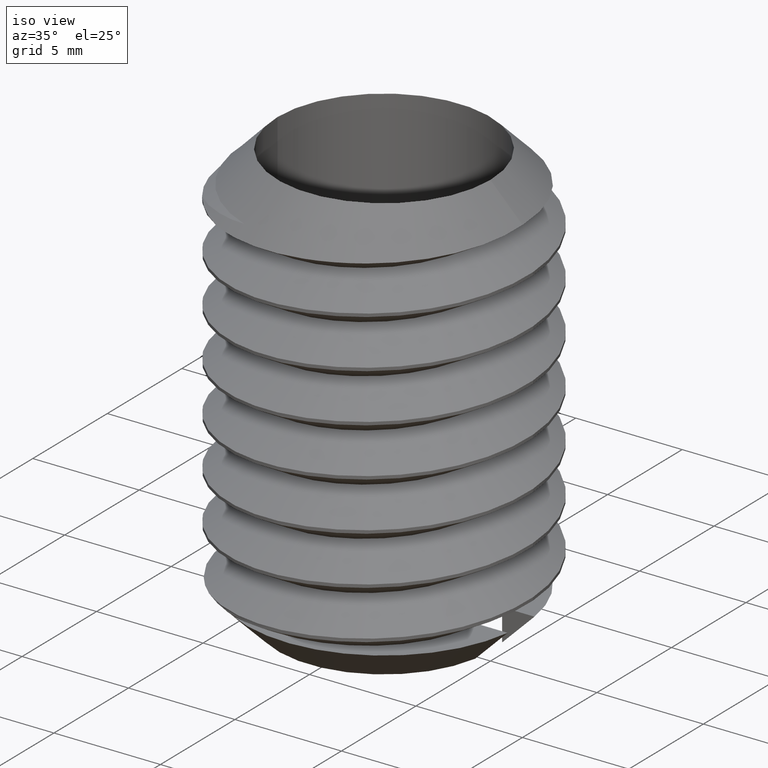
[diagram: clean part render]
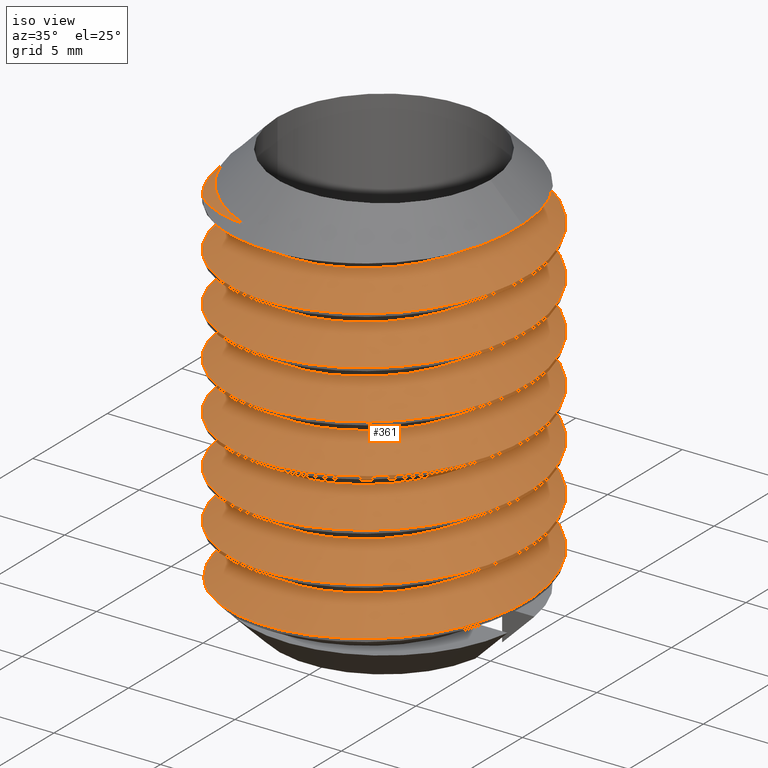
[diagram: same view with one face highlighted and labeled with its STEP entity id]
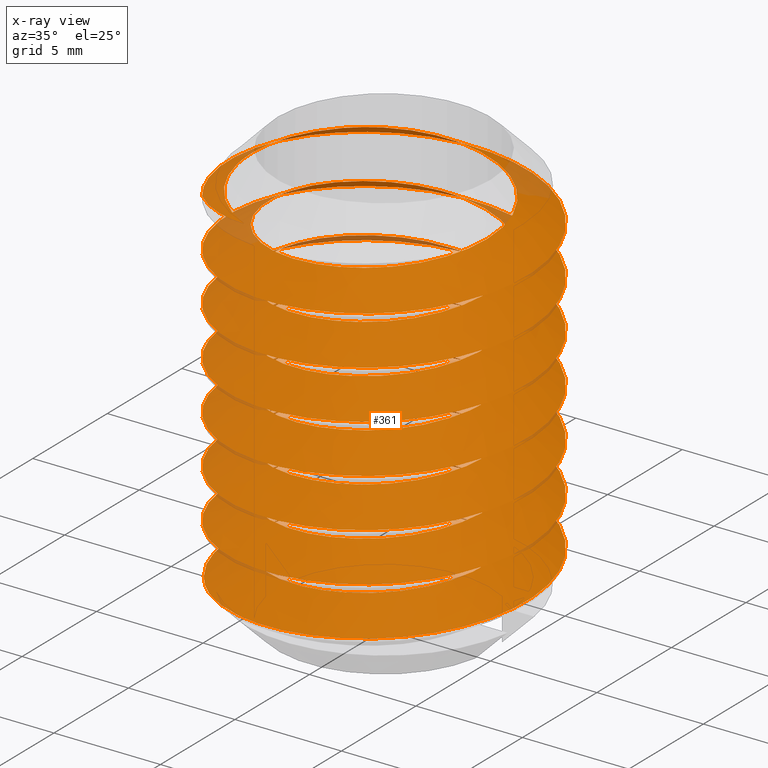
[diagram: x-ray of the same camera — body ghosted, the highlighted face saturated]
A machine part, iso view. The second image highlights one B-rep face of the part: STEP entity #361.
The next image is the same camera in x-ray: the body ghosted, the highlighted face saturated — about 4% of this face is hidden behind the body in this view.
In plain terms, the highlighted face is a freeform B-spline surface patch.
Its self-contained STEP definition (entity closure, byte-faithful):
#1 = EDGE_LOOP ( 'NONE', ( #2192, #2196, #2193, #44, #48, #43, #46, #45, #47, #49, #42, #30, #2188, #2187, #2186, #2185, #2184, #2183, #2182, #2181, #2180, #2178, #2173, #2174, #2168 ) ) ;
#30 = ORIENTED_EDGE ( 'NONE', *, *, #285, .T. ) ;
#42 = ORIENTED_EDGE ( 'NONE', *, *, #311, .T. ) ;
#43 = ORIENTED_EDGE ( 'NONE', *, *, #250, .F. ) ;
#44 = ORIENTED_EDGE ( 'NONE', *, *, #253, .F. ) ;
#45 = ORIENTED_EDGE ( 'NONE', *, *, #290, .T. ) ;
#46 = ORIENTED_EDGE ( 'NONE', *, *, #270, .T. ) ;
#47 = ORIENTED_EDGE ( 'NONE', *, *, #315, .T. ) ;
#48 = ORIENTED_EDGE ( 'NONE', *, *, #274, .T. ) ;
#49 = ORIENTED_EDGE ( 'NONE', *, *, #287, .T. ) ;
#160 = FACE_OUTER_BOUND ( 'NONE', #1, .T. ) ;
#212 = B_SPLINE_CURVE_WITH_KNOTS ( 'NONE', 3,
 ( #1485, #1486, #1487, #1488, #1489, #1490, #1491, #1492, #1493, #1494 ),
 .UNSPECIFIED., .F., .F.,
 ( 4, 2, 2, 2, 4 ),
 ( 0.009299717025480538600, 0.01059722764745432500, 0.01189473826942811200, 0.01319224889140189700, 0.01448975951337568200 ),
 .UNSPECIFIED. ) ;
#214 = B_SPLINE_CURVE_WITH_KNOTS ( 'NONE', 3,
 ( #1504, #1505, #1506, #1507 ),
 .UNSPECIFIED., .F., .F.,
 ( 4, 4 ),
 ( 3.577867169202164600E-018, 0.001810792321216970000 ),
 .UNSPECIFIED. ) ;
#215 = B_SPLINE_CURVE_WITH_KNOTS ( 'NONE', 3,
 ( #1518, #1519, #1520, #1521, #1522, #1523, #1524, #1525, #1526, #1527, #1528, #1529, #1530, #1531, #1532, #1533 ),
 .UNSPECIFIED., .F., .F.,
 ( 4, 2, 2, 2, 2, 2, 2, 4 ),
 ( 4.336808689942017700E-019, 0.001875284223610185600, 0.002812926335415279600, 0.003750568447220373300, 0.004688210559025466500, 0.005625852670830560100, 0.006563494782635655500, 0.007501136894440747400 ),
 .UNSPECIFIED. ) ;
#250 = EDGE_CURVE ( 'NONE', #1140, #1124, #1227, .T. ) ;
#251 = EDGE_CURVE ( 'NONE', #1094, #1120, #1220, .T. ) ;
#252 = EDGE_CURVE ( 'NONE', #1090, #1126, #2332, .T. ) ;
#253 = EDGE_CURVE ( 'NONE', #1107, #1117, #1219, .T. ) ;
#259 = EDGE_CURVE ( 'NONE', #1094, #1126, #1226, .T. ) ;
#261 = EDGE_CURVE ( 'NONE', #1121, #1090, #1225, .T. ) ;
#264 = EDGE_CURVE ( 'NONE', #1106, #1149, #2330, .T. ) ;
#265 = EDGE_CURVE ( 'NONE', #1099, #1131, #2331, .T. ) ;
#266 = EDGE_CURVE ( 'NONE', #1149, #1121, #1232, .T. ) ;
#270 = EDGE_CURVE ( 'NONE', #1140, #1118, #212, .T. ) ;
#274 = EDGE_CURVE ( 'NONE', #1107, #1124, #214, .T. ) ;
#275 = EDGE_CURVE ( 'NONE', #1098, #1088, #2336, .T. ) ;
#277 = EDGE_CURVE ( 'NONE', #1120, #1117, #215, .T. ) ;
#281 = EDGE_CURVE ( 'NONE', #1148, #1116, #2313, .T. ) ;
#284 = EDGE_CURVE ( 'NONE', #1104, #1145, #2338, .T. ) ;
#285 = EDGE_CURVE ( 'NONE', #1103, #1122, #2337, .T. ) ;
#287 = EDGE_CURVE ( 'NONE', #1110, #1141, #2340, .T. ) ;
#290 = EDGE_CURVE ( 'NONE', #1118, #1119, #2316, .T. ) ;
#293 = EDGE_CURVE ( 'NONE', #1088, #1099, #2324, .T. ) ;
#297 = EDGE_CURVE ( 'NONE', #1145, #1148, #2328, .T. ) ;
#299 = EDGE_CURVE ( 'NONE', #1116, #1098, #2315, .T. ) ;
#306 = EDGE_CURVE ( 'NONE', #1122, #1104, #2326, .T. ) ;
#311 = EDGE_CURVE ( 'NONE', #1141, #1103, #2322, .T. ) ;
#315 = EDGE_CURVE ( 'NONE', #1119, #1110, #2312, .T. ) ;
#319 = EDGE_CURVE ( 'NONE', #1131, #1106, #2318, .T. ) ;
#361 = ADVANCED_FACE ( 'NONE', ( #160 ), #2339, .T. ) ;
#979 = CARTESIAN_POINT ( 'NONE',  ( 6.999999999999999100, 2.096719583698235100E-013, -5.677720502487283700 ) ) ;
#981 = CARTESIAN_POINT ( 'NONE',  ( -2.988510593891971400, 4.173717233031792900, -1.499999999999999800 ) ) ;
#985 = CARTESIAN_POINT ( 'NONE',  ( 5.331450432112282200, 0.9000000000000000200, -18.50000000000000000 ) ) ;
#989 = CARTESIAN_POINT ( 'NONE',  ( -6.999999999999999100, -2.105292111292266600E-013, -6.827720502487280500 ) ) ;
#990 = CARTESIAN_POINT ( 'NONE',  ( -6.999999999999999100, -2.105292111292266600E-013, -4.527720502487286900 ) ) ;
#993 = CARTESIAN_POINT ( 'NONE',  ( -6.999999999999999100, -2.105292111292266600E-013, -13.72772050248726400 ) ) ;
#994 = CARTESIAN_POINT ( 'NONE',  ( -6.999999999999999100, -2.105292111292266600E-013, -11.42772050248727000 ) ) ;
#996 = CARTESIAN_POINT ( 'NONE',  ( -6.999999999999999100, -2.105292111292266600E-013, -2.227720502487292800 ) ) ;
#997 = CARTESIAN_POINT ( 'NONE',  ( -5.392573405354223600, 0.9000000000000000200, -17.50000000000000000 ) ) ;
#1000 = CARTESIAN_POINT ( 'NONE',  ( -6.999999999999999100, -2.105292111292266600E-013, -16.02772050248725900 ) ) ;
#1006 = CARTESIAN_POINT ( 'NONE',  ( 6.999999999999999100, 2.096719583698235100E-013, -7.977720502487279900 ) ) ;
#1007 = CARTESIAN_POINT ( 'NONE',  ( -6.702994539037149500, 0.9000000000000000200, -18.23685459343344600 ) ) ;
#1008 = CARTESIAN_POINT ( 'NONE',  ( -4.425272201262641800, -5.423740954796060400, -17.99999999999996400 ) ) ;
#1009 = CARTESIAN_POINT ( 'NONE',  ( 6.999999999999999100, 2.096719583698235100E-013, -17.17772050248725800 ) ) ;
#1010 = CARTESIAN_POINT ( 'NONE',  ( -1.933812759898191600, 6.205672260894279400, -18.50000000000000000 ) ) ;
#1011 = CARTESIAN_POINT ( 'NONE',  ( -2.305317674866649700, -6.077459207427649400, -1.499999999999999100 ) ) ;
#1012 = CARTESIAN_POINT ( 'NONE',  ( 6.999999999999999100, 2.096719583698235100E-013, -12.57772050248726700 ) ) ;
#1014 = CARTESIAN_POINT ( 'NONE',  ( -5.589978649910518600, -0.9000000000000000200, -17.50000000000000000 ) ) ;
#1016 = CARTESIAN_POINT ( 'NONE',  ( 5.053821436409395000, 0.8999999999999892500, -18.33882755625657900 ) ) ;
#1020 = CARTESIAN_POINT ( 'NONE',  ( 6.999999999999999100, 2.096719583698235100E-013, -3.377720502487290100 ) ) ;
#1028 = CARTESIAN_POINT ( 'NONE',  ( -6.761429889255426300, -0.9000000000000000200, -18.17893452990538000 ) ) ;
#1029 = CARTESIAN_POINT ( 'NONE',  ( 6.999999999999999100, 2.096719583698235100E-013, -14.87772050248726100 ) ) ;
#1033 = CARTESIAN_POINT ( 'NONE',  ( 6.999999999999999100, 2.096719583698235100E-013, -10.27772050248727400 ) ) ;
#1035 = CARTESIAN_POINT ( 'NONE',  ( -6.999999999999999100, -2.105292111292266600E-013, -9.127720502487276700 ) ) ;
#1036 = CARTESIAN_POINT ( 'NONE',  ( -5.706117880068423400, -4.054653960421705800, -2.000000000000014700 ) ) ;
#1088 = VERTEX_POINT ( 'NONE', #979 ) ;
#1090 = VERTEX_POINT ( 'NONE', #981 ) ;
#1094 = VERTEX_POINT ( 'NONE', #985 ) ;
#1098 = VERTEX_POINT ( 'NONE', #989 ) ;
#1099 = VERTEX_POINT ( 'NONE', #990 ) ;
#1103 = VERTEX_POINT ( 'NONE', #993 ) ;
#1104 = VERTEX_POINT ( 'NONE', #994 ) ;
#1106 = VERTEX_POINT ( 'NONE', #996 ) ;
#1107 = VERTEX_POINT ( 'NONE', #997 ) ;
#1110 = VERTEX_POINT ( 'NONE', #1000 ) ;
#1116 = VERTEX_POINT ( 'NONE', #1006 ) ;
#1117 = VERTEX_POINT ( 'NONE', #1007 ) ;
#1118 = VERTEX_POINT ( 'NONE', #1008 ) ;
#1119 = VERTEX_POINT ( 'NONE', #1009 ) ;
#1120 = VERTEX_POINT ( 'NONE', #1010 ) ;
#1121 = VERTEX_POINT ( 'NONE', #1011 ) ;
#1122 = VERTEX_POINT ( 'NONE', #1012 ) ;
#1124 = VERTEX_POINT ( 'NONE', #1014 ) ;
#1126 = VERTEX_POINT ( 'NONE', #1016 ) ;
#1131 = VERTEX_POINT ( 'NONE', #1020 ) ;
#1140 = VERTEX_POINT ( 'NONE', #1028 ) ;
#1141 = VERTEX_POINT ( 'NONE', #1029 ) ;
#1145 = VERTEX_POINT ( 'NONE', #1033 ) ;
#1148 = VERTEX_POINT ( 'NONE', #1035 ) ;
#1149 = VERTEX_POINT ( 'NONE', #1036 ) ;
#1219 = B_SPLINE_CURVE_WITH_KNOTS ( 'NONE', 3,
 ( #1252, #1427, #1466, #1420, #1404, #1260, #1287 ),
 .UNSPECIFIED., .F., .F.,
 ( 4, 3, 4 ),
 ( 0.0000000000000000000, 0.0006428701152623940600, 0.001503383922675799500 ),
 .UNSPECIFIED. ) ;
#1220 = B_SPLINE_CURVE_WITH_KNOTS ( 'NONE', 3,
 ( #1268, #1245, #1326, #1341, #1250, #1329, #1392, #1388, #1368, #1382, #1311, #1394, #1401, #1315, #1393, #1333, #1324, #1409, #1346, #1310, #1337, #1248, #1385, #1282, #1361, #1308 ),
 .UNSPECIFIED., .F., .F.,
 ( 4, 2, 2, 2, 2, 1, 2, 2, 2, 2, 1, 2, 2, 4 ),
 ( 0.002372067729151844600, 0.003007791443262534400, 0.003643515157373224600, 0.004914962585594606800, 0.005550686299705296200, 0.006186410013815986400, 0.006822133727926676600, 0.007457857442037366800, 0.008729304870258745500, 0.009365028584369435700, 0.01000075229848012600, 0.01063647601259081600, 0.01127219972670150500, 0.01254364715492288200 ),
 .UNSPECIFIED. ) ;
#1225 = B_SPLINE_CURVE_WITH_KNOTS ( 'NONE', 3,
 ( #1467, #1424, #1298, #1403, #1475, #1327, #1247, #1309, #1434, #1471, #1273, #1256, #1304, #1357, #1477, #1306, #1271, #1378, #1269, #1448, #1453, #1338, #1402, #1330, #1458, #1437, #1363, #1276 ),
 .UNSPECIFIED., .F., .F.,
 ( 4, 2, 2, 2, 2, 2, 2, 2, 2, 2, 2, 2, 2, 4 ),
 ( 0.005211217670944647700, 0.006781271400417285400, 0.008351325129889924900, 0.009136351994626243400, 0.009921378859362561800, 0.01070640572409888000, 0.01149143258883520000, 0.01227645945357151900, 0.01306148631830783700, 0.01463154004778047600, 0.01541656691251679400, 0.01620159377725311300, 0.01698662064198943500, 0.01777164750672575000 ),
 .UNSPECIFIED. ) ;
#1226 = B_SPLINE_CURVE_WITH_KNOTS ( 'NONE', 3,
 ( #1474, #1421, #1263, #1400 ),
 .UNSPECIFIED., .F., .F.,
 ( 4, 4 ),
 ( 0.001861418047168189600, 0.002182438947533759900 ),
 .UNSPECIFIED. ) ;
#1227 = B_SPLINE_CURVE_WITH_KNOTS ( 'NONE', 3,
 ( #1351, #1408, #1406, #1336, #1407, #1386, #1350 ),
 .UNSPECIFIED., .F., .F.,
 ( 4, 3, 4 ),
 ( 0.0002085496552603421500, 0.0006428695481605908300, 0.001562525353227359200 ),
 .UNSPECIFIED. ) ;
#1232 = B_SPLINE_CURVE_WITH_KNOTS ( 'NONE', 3,
 ( #1432, #1381, #1455, #1288, #1299, #1293, #1462, #1313 ),
 .UNSPECIFIED., .F., .F.,
 ( 4, 2, 2, 4 ),
 ( 0.0000000000000000000, 0.002008921170697491200, 0.003013381756046236800, 0.004017842341394982400 ),
 .UNSPECIFIED. ) ;
#1245 = CARTESIAN_POINT ( 'NONE',  ( 5.320270151013210700, 1.112136422218537500, -18.49999999999996800 ) ) ;
#1246 = CARTESIAN_POINT ( 'NONE',  ( -5.133333333333332900, -1.776545679011072000E-013, -8.049999999999974100 ) ) ;
#1247 = CARTESIAN_POINT ( 'NONE',  ( -4.969471208212628000, -3.618816587791804800, -1.500000000000000700 ) ) ;
#1248 = CARTESIAN_POINT ( 'NONE',  ( -0.2416950038087829200, 6.326826044600283100, -18.50000000000000000 ) ) ;
#1250 = CARTESIAN_POINT ( 'NONE',  ( 5.178523640258771500, 1.954336700723211300, -18.50000000000000400 ) ) ;
#1251 = CARTESIAN_POINT ( 'NONE',  ( -2.566666666666807200, 4.445597072760035600, -3.833333333333317900 ) ) ;
#1252 = CARTESIAN_POINT ( 'NONE',  ( -5.392573405354223600, 0.9000000000000000200, -17.50000000000000000 ) ) ;
#1253 = CARTESIAN_POINT ( 'NONE',  ( -5.133333333333424300, 2.963731381839918000, -3.641666666666651500 ) ) ;
#1254 = CARTESIAN_POINT ( 'NONE',  ( 2.566666666666811600, -4.445597072760032900, -11.88333333333329700 ) ) ;
#1255 = CARTESIAN_POINT ( 'NONE',  ( -5.133333333333427900, 2.963731381839911800, -15.14166666666662100 ) ) ;
#1256 = CARTESIAN_POINT ( 'NONE',  ( -5.684394802711399700, -1.648694161591120800, -1.499999999999996700 ) ) ;
#1257 = CARTESIAN_POINT ( 'NONE',  ( 5.133333333333332900, 1.562740442321197600E-013, -2.299999999999988700 ) ) ;
#1258 = CARTESIAN_POINT ( 'NONE',  ( 5.133333333333422600, -2.963731381839918900, -2.491666666666655100 ) ) ;
#1260 = CARTESIAN_POINT ( 'NONE',  ( -6.453286601228929200, 0.9000000000000175600, -18.09570980264994200 ) ) ;
#1261 = CARTESIAN_POINT ( 'NONE',  ( -5.133333333333427000, 2.963731381839913100, -12.84166666666662900 ) ) ;
#1262 = CARTESIAN_POINT ( 'NONE',  ( -5.133333333333332900, -1.660213280312700400E-013, -3.449999999999985100 ) ) ;
#1263 = CARTESIAN_POINT ( 'NONE',  ( 5.146356951809484500, 0.8999999999999891400, -18.39256459229936500 ) ) ;
#1264 = CARTESIAN_POINT ( 'NONE',  ( -6.999999999999999100, -2.105292111292266600E-013, -2.227720502487292800 ) ) ;
#1265 = CARTESIAN_POINT ( 'NONE',  ( -6.999999999999876500, -4.041451884327591900, -4.336053835820621300 ) ) ;
#1268 = CARTESIAN_POINT ( 'NONE',  ( 5.331450432112282200, 0.9000000000000000200, -18.50000000000000000 ) ) ;
#1269 = CARTESIAN_POINT ( 'NONE',  ( -5.408225060117263900, 1.466056632610572000, -1.500000000000001800 ) ) ;
#1270 = CARTESIAN_POINT ( 'NONE',  ( 5.133333333333332900, 1.613032604206182300E-013, -11.49999999999996400 ) ) ;
#1271 = CARTESIAN_POINT ( 'NONE',  ( -5.724047332653962700, 0.1875013067672101900, -1.500000000000000400 ) ) ;
#1272 = CARTESIAN_POINT ( 'NONE',  ( 5.133333333333438600, -2.963731381839892700, -16.29166666666662200 ) ) ;
#1273 = CARTESIAN_POINT ( 'NONE',  ( -5.570538755223617900, -2.163960445699936400, -1.499999999999996700 ) ) ;
#1274 = CARTESIAN_POINT ( 'NONE',  ( 5.133333333333427000, -2.963731381839914500, -9.391666666666637300 ) ) ;
#1275 = CARTESIAN_POINT ( 'NONE',  ( 2.566666666666517700, 4.445597072760204300, -8.816666666666639800 ) ) ;
#1276 = CARTESIAN_POINT ( 'NONE',  ( -2.988510593891971400, 4.173717233031792900, -1.499999999999999800 ) ) ;
#1278 = CARTESIAN_POINT ( 'NONE',  ( 6.999999999999999100, 2.096719583698235100E-013, -3.377720502487290100 ) ) ;
#1279 = CARTESIAN_POINT ( 'NONE',  ( -2.566666666666518100, -4.445597072760204300, -7.666666666666641200 ) ) ;
#1280 = CARTESIAN_POINT ( 'NONE',  ( 5.133333333333438600, -2.963731381839894000, -13.99166666666662500 ) ) ;
#1281 = CARTESIAN_POINT ( 'NONE',  ( -5.133333333333231600, -2.963731381840252400, -5.558333333333314000 ) ) ;
#1282 = CARTESIAN_POINT ( 'NONE',  ( -1.097329234236930100, 6.336046235831999800, -18.50000000000000000 ) ) ;
#1284 = CARTESIAN_POINT ( 'NONE',  ( -2.566666666666519000, -4.445597072760203400, -5.366666666666647600 ) ) ;
#1286 = CARTESIAN_POINT ( 'NONE',  ( 5.133333333333332900, 1.638178685148674600E-013, -16.09999999999995500 ) ) ;
#1287 = CARTESIAN_POINT ( 'NONE',  ( -6.702994539037149500, 0.9000000000000000200, -18.23685459343344600 ) ) ;
#1288 = CARTESIAN_POINT ( 'NONE',  ( -3.872147165748886200, -5.483974465955367500, -1.705025009710511100 ) ) ;
#1289 = CARTESIAN_POINT ( 'NONE',  ( -2.007787272359033500E-013, 5.927462763680156700, -17.82499999999995000 ) ) ;
#1290 = CARTESIAN_POINT ( 'NONE',  ( -1.920678692751761000E-013, 5.927462763680156700, -4.024999999999984400 ) ) ;
#1291 = CARTESIAN_POINT ( 'NONE',  ( -2.784241761564278100, 4.319980033152014600, -1.517085842480590200 ) ) ;
#1292 = CARTESIAN_POINT ( 'NONE',  ( -2.566666666666828100, 4.445597072760024900, -13.03333333333329400 ) ) ;
#1293 = CARTESIAN_POINT ( 'NONE',  ( -2.951841342649728100, -5.895861079838735600, -1.585126729073712800 ) ) ;
#1294 = CARTESIAN_POINT ( 'NONE',  ( 5.133333333333424300, -2.963731381839917600, -4.791666666666649200 ) ) ;
#1296 = CARTESIAN_POINT ( 'NONE',  ( -1.964232982555397200E-013, 5.927462763680156700, -10.92499999999996500 ) ) ;
#1298 = CARTESIAN_POINT ( 'NONE',  ( -3.217455823496413000, -5.562936466112154800, -1.499999999999999600 ) ) ;
#1299 = CARTESIAN_POINT ( 'NONE',  ( -3.569975030238732700, -5.637401682256980400, -1.664410573836938600 ) ) ;
#1300 = CARTESIAN_POINT ( 'NONE',  ( 2.566666666666499500, 4.445597072760214100, -13.41666666666662900 ) ) ;
#1301 = CARTESIAN_POINT ( 'NONE',  ( 5.133333333333332900, 1.575313482792443600E-013, -4.599999999999982800 ) ) ;
#1302 = CARTESIAN_POINT ( 'NONE',  ( 2.566666666666497200, 4.445597072760215900, -18.01666666666661600 ) ) ;
#1303 = CARTESIAN_POINT ( 'NONE',  ( 2.566666666666806800, -4.445597072760036500, -2.683333333333320700 ) ) ;
#1304 = CARTESIAN_POINT ( 'NONE',  ( -5.724697339285931700, -1.384781801215085900, -1.499999999999987800 ) ) ;
#1305 = CARTESIAN_POINT ( 'NONE',  ( -5.133333333333241400, -2.963731381840236400, -10.15833333333330500 ) ) ;
#1306 = CARTESIAN_POINT ( 'NONE',  ( -5.752292854944561100, -0.07499664409378745100, -1.499999999999999800 ) ) ;
#1307 = CARTESIAN_POINT ( 'NONE',  ( 1.927937741052367100E-013, -5.927462763680156700, -5.174999999999980300 ) ) ;
#1308 = CARTESIAN_POINT ( 'NONE',  ( -1.933812759898191600, 6.205672260894279400, -18.50000000000000000 ) ) ;
#1309 = CARTESIAN_POINT ( 'NONE',  ( -5.213211124436020000, -3.149068678028223100, -1.500000000000000700 ) ) ;
#1310 = CARTESIAN_POINT ( 'NONE',  ( 0.6006462880658592900, 6.220480364645927000, -18.50000000000001400 ) ) ;
#1311 = CARTESIAN_POINT ( 'NONE',  ( 3.896126712272469600, 4.376154163904926600, -18.50000000000000400 ) ) ;
#1312 = CARTESIAN_POINT ( 'NONE',  ( 5.133333333333231600, 2.963731381840256400, -13.60833333333329200 ) ) ;
#1313 = CARTESIAN_POINT ( 'NONE',  ( -2.305317674866649700, -6.077459207427649400, -1.499999999999999100 ) ) ;
#1315 = CARTESIAN_POINT ( 'NONE',  ( 3.103770643218027200, 5.088457916119155700, -18.49999999999998600 ) ) ;
#1318 = CARTESIAN_POINT ( 'NONE',  ( -5.133333333333332900, -1.814264800424810500E-013, -14.94999999999995700 ) ) ;
#1319 = CARTESIAN_POINT ( 'NONE',  ( 2.426032583240721900E-013, -8.082903768654759300, -3.952720502487288500 ) ) ;
#1321 = CARTESIAN_POINT ( 'NONE',  ( 2.566666666666519400, 4.445597072760202600, -4.216666666666650800 ) ) ;
#1324 = CARTESIAN_POINT ( 'NONE',  ( 1.619661516922303200, 5.912894484472043500, -18.50000000000000000 ) ) ;
#1326 = CARTESIAN_POINT ( 'NONE',  ( 5.297086219040421500, 1.323356663970749700, -18.50000000000000000 ) ) ;
#1327 = CARTESIAN_POINT ( 'NONE',  ( -4.831704025962870300, -3.846150485172759500, -1.500000000000000200 ) ) ;
#1328 = CARTESIAN_POINT ( 'NONE',  ( -2.566666666666830300, 4.445597072760024000, -17.63333333333328300 ) ) ;
#1329 = CARTESIAN_POINT ( 'NONE',  ( 5.001139311188930800, 2.568681591661810400, -18.50000000000000700 ) ) ;
#1330 = CARTESIAN_POINT ( 'NONE',  ( -4.063965493510005800, 3.401415531134949400, -1.499999999999993800 ) ) ;
#1331 = CARTESIAN_POINT ( 'NONE',  ( 5.133333333333332900, 1.625605644677428600E-013, -13.79999999999995800 ) ) ;
#1332 = CARTESIAN_POINT ( 'NONE',  ( 2.196595907868286300E-013, -5.927462763680156700, -14.37499999999995700 ) ) ;
#1333 = CARTESIAN_POINT ( 'NONE',  ( 2.208182680779865700, 5.660269771070582000, -18.50000000000000000 ) ) ;
#1334 = CARTESIAN_POINT ( 'NONE',  ( -6.999999999999931600, -2.233772580331224500, -2.121783389583944000 ) ) ;
#1335 = CARTESIAN_POINT ( 'NONE',  ( 2.566666666666813900, -4.445597072760032000, -16.48333333333328800 ) ) ;
#1336 = CARTESIAN_POINT ( 'NONE',  ( -6.385610892620899600, -0.9000000000000882800, -17.96123324042928700 ) ) ;
#1337 = CARTESIAN_POINT ( 'NONE',  ( 0.1816090385465372900, 6.284292837595948800, -18.49999999999999600 ) ) ;
#1338 = CARTESIAN_POINT ( 'NONE',  ( -4.598424954671528100, 2.823560881337894700, -1.499999999999999800 ) ) ;
#1339 = CARTESIAN_POINT ( 'NONE',  ( -5.133333333333332900, -1.801691759953564500E-013, -12.64999999999996100 ) ) ;
#1340 = CARTESIAN_POINT ( 'NONE',  ( -2.566666666666513700, -4.445597072760206100, -16.86666666666662100 ) ) ;
#1341 = CARTESIAN_POINT ( 'NONE',  ( 5.226412702774009500, 1.743942014891514600, -18.50000000000000000 ) ) ;
#1342 = CARTESIAN_POINT ( 'NONE',  ( 5.133333333333332900, 1.782832199246695100E-013, -9.199999999999970900 ) ) ;
#1345 = CARTESIAN_POINT ( 'NONE',  ( 5.133333333333435900, -2.963731381839895400, -11.69166666666662900 ) ) ;
#1346 = CARTESIAN_POINT ( 'NONE',  ( 1.011269835765348200, 6.114707242213578200, -18.49999999999998200 ) ) ;
#1347 = CARTESIAN_POINT ( 'NONE',  ( -1.800867705945013600E-013, 5.927462763680156700, -1.724999999999989400 ) ) ;
#1348 = CARTESIAN_POINT ( 'NONE',  ( -5.133333333333238700, -2.963731381840241300, -3.258333333333319500 ) ) ;
#1349 = CARTESIAN_POINT ( 'NONE',  ( -2.566666666666808500, 4.445597072760034700, -6.133333333333311500 ) ) ;
#1350 = CARTESIAN_POINT ( 'NONE',  ( -5.589978649910518600, -0.9000000000000000200, -17.50000000000000000 ) ) ;
#1351 = CARTESIAN_POINT ( 'NONE',  ( -6.761429889255426300, -0.9000000000000000200, -18.17893452990538000 ) ) ;
#1352 = CARTESIAN_POINT ( 'NONE',  ( -5.133333333333332900, -1.789118719482318300E-013, -10.34999999999996900 ) ) ;
#1353 = CARTESIAN_POINT ( 'NONE',  ( 1.913419644451155300E-013, -5.927462763680156700, -2.874999999999987100 ) ) ;
#1357 = CARTESIAN_POINT ( 'NONE',  ( -5.769922767170642800, -0.8608205446838428400, -1.499999999999987600 ) ) ;
#1358 = CARTESIAN_POINT ( 'NONE',  ( 7.000000000000120800, -4.041451884327169200, -3.569387169153956500 ) ) ;
#1359 = CARTESIAN_POINT ( 'NONE',  ( 2.566666666666518500, 4.445597072760203400, -6.516666666666644400 ) ) ;
#1361 = CARTESIAN_POINT ( 'NONE',  ( -1.518471323224528200, 6.291973747259695500, -18.50000000000001800 ) ) ;
#1363 = CARTESIAN_POINT ( 'NONE',  ( -3.221474767319343800, 4.045189602728157800, -1.499999999999999800 ) ) ;
#1364 = CARTESIAN_POINT ( 'NONE',  ( 5.133333333333332900, 1.587886523263689900E-013, -6.899999999999977300 ) ) ;
#1365 = CARTESIAN_POINT ( 'NONE',  ( -5.706117880068423400, -4.054653960421705800, -2.000000000000014700 ) ) ;
#1366 = CARTESIAN_POINT ( 'NONE',  ( 2.566666666666498600, 4.445597072760215000, -15.71666666666662200 ) ) ;
#1367 = CARTESIAN_POINT ( 'NONE',  ( 1.942455837653579000E-013, -5.927462763680156700, -7.474999999999974800 ) ) ;
#1368 = CARTESIAN_POINT ( 'NONE',  ( 4.411351924585720700, 3.700247125590670800, -18.49999999999999300 ) ) ;
#1369 = CARTESIAN_POINT ( 'NONE',  ( -5.133333333333428800, 2.963731381839910000, -17.44166666666661700 ) ) ;
#1373 = CARTESIAN_POINT ( 'NONE',  ( 2.566666666666808100, -4.445597072760035600, -4.983333333333315600 ) ) ;
#1376 = CARTESIAN_POINT ( 'NONE',  ( 5.133333333333232500, 2.963731381840251100, -4.408333333333316300 ) ) ;
#1378 = CARTESIAN_POINT ( 'NONE',  ( -5.578349720745272600, 0.9712594700908910900, -1.500000000000001100 ) ) ;
#1379 = CARTESIAN_POINT ( 'NONE',  ( -5.133333333333427000, 2.963731381839914000, -10.54166666666663600 ) ) ;
#1381 = CARTESIAN_POINT ( 'NONE',  ( -5.248774135763946800, -4.549456726173827000, -1.913799525295906400 ) ) ;
#1382 = CARTESIAN_POINT ( 'NONE',  ( 4.162785402177734200, 4.046341005382376300, -18.50000000000000000 ) ) ;
#1383 = CARTESIAN_POINT ( 'NONE',  ( -1.978751079156609600E-013, 5.927462763680156700, -13.22499999999996100 ) ) ;
#1385 = CARTESIAN_POINT ( 'NONE',  ( -0.4567227881766350900, 6.337411271438266900, -18.49999999999999600 ) ) ;
#1386 = CARTESIAN_POINT ( 'NONE',  ( -5.855147974810711800, -0.8999999999999962500, -17.65381584584785600 ) ) ;
#1387 = CARTESIAN_POINT ( 'NONE',  ( 2.182077811267074500E-013, -5.927462763680156700, -12.07499999999996400 ) ) ;
#1388 = CARTESIAN_POINT ( 'NONE',  ( 4.527030163331448700, 3.518041715847397600, -18.50000000000000400 ) ) ;
#1389 = CARTESIAN_POINT ( 'NONE',  ( -5.133333333333231600, -2.963731381840252400, -7.858333333333307600 ) ) ;
#1390 = CARTESIAN_POINT ( 'NONE',  ( -2.566666666666527900, -4.445597072760198100, -3.066666666666653100 ) ) ;
#1391 = CARTESIAN_POINT ( 'NONE',  ( 2.566666666666500300, 4.445597072760213200, -11.11666666666663200 ) ) ;
#1392 = CARTESIAN_POINT ( 'NONE',  ( 4.838239626432267600, 2.959596853198438500, -18.50000000000000000 ) ) ;
#1393 = CARTESIAN_POINT ( 'NONE',  ( 2.579154477509156600, 5.454062535363592100, -18.50000000000000000 ) ) ;
#1394 = CARTESIAN_POINT ( 'NONE',  ( 3.593982898275723600, 4.674035083539233200, -18.49999999999999300 ) ) ;
#1395 = CARTESIAN_POINT ( 'NONE',  ( -2.566666666666517200, -4.445597072760204300, -9.966666666666636600 ) ) ;
#1399 = CARTESIAN_POINT ( 'NONE',  ( -5.133333333333240500, -2.963731381840237800, -12.45833333333329700 ) ) ;
#1400 = CARTESIAN_POINT ( 'NONE',  ( 5.053821436409395000, 0.8999999999999892500, -18.33882755625657900 ) ) ;
#1401 = CARTESIAN_POINT ( 'NONE',  ( 3.273758170309402500, 4.955645408692625200, -18.49999999999999300 ) ) ;
#1402 = CARTESIAN_POINT ( 'NONE',  ( -4.429914735909529000, 3.024600468429471600, -1.499999999999994000 ) ) ;
#1403 = CARTESIAN_POINT ( 'NONE',  ( -4.029287505893777600, -4.877783553636629900, -1.499999999999999300 ) ) ;
#1404 = CARTESIAN_POINT ( 'NONE',  ( -6.203435960327514200, 0.8999999999999939200, -17.95481688547814200 ) ) ;
#1406 = CARTESIAN_POINT ( 'NONE',  ( -6.510877293135950900, -0.9000000000000882800, -18.03381172651998200 ) ) ;
#1407 = CARTESIAN_POINT ( 'NONE',  ( -6.120364073352617700, -0.9000000000000882800, -17.80755106784581400 ) ) ;
#1408 = CARTESIAN_POINT ( 'NONE',  ( -6.636150674955914900, -0.8999999999999875900, -18.10637816419076500 ) ) ;
#1409 = CARTESIAN_POINT ( 'NONE',  ( 1.417616617292572200, 5.987605115007387000, -18.49999999999998200 ) ) ;
#1411 = CARTESIAN_POINT ( 'NONE',  ( 5.053821436409395000, 0.8999999999999892500, -18.33882755625657900 ) ) ;
#1412 = CARTESIAN_POINT ( 'NONE',  ( 5.133333333333231600, 2.963731381840252400, -6.708333333333310800 ) ) ;
#1413 = CARTESIAN_POINT ( 'NONE',  ( 5.133333333333228900, 2.963731381840257800, -15.90833333333328900 ) ) ;
#1414 = CARTESIAN_POINT ( 'NONE',  ( -2.566666666666806300, 4.445597072760036500, -1.533333333333323700 ) ) ;
#1415 = CARTESIAN_POINT ( 'NONE',  ( 5.133333333333238700, 2.963731381840240900, -2.108333333333322300 ) ) ;
#1417 = CARTESIAN_POINT ( 'NONE',  ( -2.988510593891971400, 4.173717233031792900, -1.499999999999999800 ) ) ;
#1420 = CARTESIAN_POINT ( 'NONE',  ( -5.953382169146753900, 0.8999999999999939200, -17.81428572279214300 ) ) ;
#1421 = CARTESIAN_POINT ( 'NONE',  ( 5.238900350191714000, 0.8999999999999704900, -18.44628805542972600 ) ) ;
#1422 = CARTESIAN_POINT ( 'NONE',  ( -5.133333333333218300, -2.963731381840276400, -17.05833333333328400 ) ) ;
#1423 = CARTESIAN_POINT ( 'NONE',  ( 2.566666666666809000, -4.445597072760034700, -7.283333333333310100 ) ) ;
#1424 = CARTESIAN_POINT ( 'NONE',  ( -2.775703764135388800, -5.845710507058572400, -1.499999999999946500 ) ) ;
#1425 = CARTESIAN_POINT ( 'NONE',  ( -2.566666666666826700, 4.445597072760024900, -10.73333333333330100 ) ) ;
#1426 = CARTESIAN_POINT ( 'NONE',  ( 2.566666666666810300, -4.445597072760033800, -9.583333333333303700 ) ) ;
#1427 = CARTESIAN_POINT ( 'NONE',  ( -5.579649211788138000, 0.9000000000000035700, -17.60451250266589100 ) ) ;
#1428 = CARTESIAN_POINT ( 'NONE',  ( -2.566666666666514600, -4.445597072760206100, -14.56666666666662400 ) ) ;
#1429 = CARTESIAN_POINT ( 'NONE',  ( -5.133333333333425200, 2.963731381839915400, -8.241666666666640500 ) ) ;
#1430 = CARTESIAN_POINT ( 'NONE',  ( -5.133333333333424300, 2.963731381839917100, -5.941666666666645100 ) ) ;
#1431 = CARTESIAN_POINT ( 'NONE',  ( 2.211114004469498600E-013, -5.927462763680156700, -16.67499999999995500 ) ) ;
#1432 = CARTESIAN_POINT ( 'NONE',  ( -5.706117880068423400, -4.054653960421705800, -2.000000000000014700 ) ) ;
#1433 = CARTESIAN_POINT ( 'NONE',  ( 5.133333333333231600, 2.963731381840253300, -9.008333333333306200 ) ) ;
#1434 = CARTESIAN_POINT ( 'NONE',  ( -5.318572256229989700, -2.908409132190097300, -1.500000000000000400 ) ) ;
#1435 = CARTESIAN_POINT ( 'NONE',  ( -3.499999999999816100, -6.062177826491175200, -4.144387169153954000 ) ) ;
#1436 = CARTESIAN_POINT ( 'NONE',  ( 2.167559714665862600E-013, -5.927462763680156700, -9.774999999999970200 ) ) ;
#1437 = CARTESIAN_POINT ( 'NONE',  ( -3.443406204546417500, 3.900322233100342200, -1.499999999999999100 ) ) ;
#1438 = CARTESIAN_POINT ( 'NONE',  ( 2.566666666666812500, -4.445597072760032900, -14.18333333333329100 ) ) ;
#1447 = CARTESIAN_POINT ( 'NONE',  ( -2.566666666666829000, 4.445597072760024000, -15.33333333333329000 ) ) ;
#1448 = CARTESIAN_POINT ( 'NONE',  ( -5.046243149200367200, 2.167712779688121500, -1.500000000000002000 ) ) ;
#1450 = CARTESIAN_POINT ( 'NONE',  ( -5.133333333333218300, -2.963731381840274600, -14.75833333333329000 ) ) ;
#1451 = CARTESIAN_POINT ( 'NONE',  ( -5.133333333333332900, -1.581600003028067000E-013, -5.749999999999978700 ) ) ;
#1452 = CARTESIAN_POINT ( 'NONE',  ( -1.949714885954185400E-013, 5.927462763680156700, -8.624999999999973400 ) ) ;
#1453 = CARTESIAN_POINT ( 'NONE',  ( -4.906267450860954500, 2.396000019758887300, -1.499999999999999800 ) ) ;
#1454 = CARTESIAN_POINT ( 'NONE',  ( -5.133333333333332900, -1.826837840896056500E-013, -17.24999999999995000 ) ) ;
#1455 = CARTESIAN_POINT ( 'NONE',  ( -4.732610919136602600, -4.967961360108458500, -1.829179251195846000 ) ) ;
#1456 = CARTESIAN_POINT ( 'NONE',  ( 5.133333333333231600, 2.963731381840254600, -11.30833333333329800 ) ) ;
#1457 = CARTESIAN_POINT ( 'NONE',  ( -2.566666666666809900, 4.445597072760034700, -8.433333333333306900 ) ) ;
#1458 = CARTESIAN_POINT ( 'NONE',  ( -3.865320193793619900, 3.578080683546176900, -1.499999999999999600 ) ) ;
#1459 = CARTESIAN_POINT ( 'NONE',  ( 5.133333333333425200, -2.963731381839915800, -7.091666666666643700 ) ) ;
#1461 = CARTESIAN_POINT ( 'NONE',  ( -1.993269175757821700E-013, 5.927462763680156700, -15.52499999999995600 ) ) ;
#1462 = CARTESIAN_POINT ( 'NONE',  ( -2.633375985036771700, -5.999668827689552200, -1.543617040188228300 ) ) ;
#1464 = CARTESIAN_POINT ( 'NONE',  ( 2.566666666666528300, 4.445597072760198100, -1.916666666666655900 ) ) ;
#1465 = CARTESIAN_POINT ( 'NONE',  ( -1.935196789352973300E-013, 5.927462763680156700, -6.324999999999978900 ) ) ;
#1466 = CARTESIAN_POINT ( 'NONE',  ( -5.766572612785537900, 0.8999999999999939200, -17.70929805580924200 ) ) ;
#1467 = CARTESIAN_POINT ( 'NONE',  ( -2.305317674866649700, -6.077459207427649400, -1.499999999999999100 ) ) ;
#1468 = CARTESIAN_POINT ( 'NONE',  ( 3.500000000000181600, -6.062177826490964700, -3.761053835820622000 ) ) ;
#1469 = CARTESIAN_POINT ( 'NONE',  ( -6.999999999999999100, -2.105292111292266600E-013, -4.527720502487286900 ) ) ;
#1471 = CARTESIAN_POINT ( 'NONE',  ( -5.497236680405955600, -2.415855229376334900, -1.500000000000000700 ) ) ;
#1472 = CARTESIAN_POINT ( 'NONE',  ( -2.566666666666515900, -4.445597072760205200, -12.26666666666663000 ) ) ;
#1474 = CARTESIAN_POINT ( 'NONE',  ( 5.331450432112282200, 0.9000000000000000200, -18.50000000000000000 ) ) ;
#1475 = CARTESIAN_POINT ( 'NONE',  ( -4.381389054195366800, -4.490814326009926900, -1.499999999999999600 ) ) ;
#1476 = CARTESIAN_POINT ( 'NONE',  ( 4.635076951497284300, 3.251399838018667500, -18.17112587624813400 ) ) ;
#1477 = CARTESIAN_POINT ( 'NONE',  ( -5.775371855153153400, -0.5988636099120949700, -1.500000000000000000 ) ) ;
#1485 = CARTESIAN_POINT ( 'NONE',  ( -6.761429889255426300, -0.9000000000000000200, -18.17893452990538000 ) ) ;
#1486 = CARTESIAN_POINT ( 'NONE',  ( -6.718338421315676700, -1.332060118314725200, -18.16464143044591100 ) ) ;
#1487 = CARTESIAN_POINT ( 'NONE',  ( -6.635272249533070300, -1.756235147704691600, -18.14996414069970900 ) ) ;
#1488 = CARTESIAN_POINT ( 'NONE',  ( -6.389238213783900600, -2.588825459781354300, -18.11987109365446400 ) ) ;
#1489 = CARTESIAN_POINT ( 'NONE',  ( -6.224823443126922500, -2.997907627450557400, -18.10441195763158000 ) ) ;
#1490 = CARTESIAN_POINT ( 'NONE',  ( -5.828343068245236400, -3.766475952057440700, -18.07402126571161500 ) ) ;
#1491 = CARTESIAN_POINT ( 'NONE',  ( -5.595283904649898300, -4.130505042034771500, -18.05893081608825700 ) ) ;
#1492 = CARTESIAN_POINT ( 'NONE',  ( -5.057803563821768700, -4.817049620551868500, -18.02895190971920800 ) ) ;
#1493 = CARTESIAN_POINT ( 'NONE',  ( -4.755562863972059500, -5.135911512995162000, -18.01421232049525400 ) ) ;
#1494 = CARTESIAN_POINT ( 'NONE',  ( -4.425272201262641800, -5.423740954796060400, -17.99999999999996400 ) ) ;
#1504 = CARTESIAN_POINT ( 'NONE',  ( -5.392573405354223600, 0.9000000000000000200, -17.50000000000000000 ) ) ;
#1505 = CARTESIAN_POINT ( 'NONE',  ( -5.560990568024045900, 0.3112537894397464600, -17.50000000000000000 ) ) ;
#1506 = CARTESIAN_POINT ( 'NONE',  ( -5.620830629577350900, -0.2894000262311333700, -17.50000000000000000 ) ) ;
#1507 = CARTESIAN_POINT ( 'NONE',  ( -5.589978649910518600, -0.9000000000000000200, -17.50000000000000000 ) ) ;
#1508 = CARTESIAN_POINT ( 'NONE',  ( -6.999999999999999100, -2.105292111292266600E-013, -6.827720502487280500 ) ) ;
#1509 = CARTESIAN_POINT ( 'NONE',  ( -6.999999999999876500, -4.041451884327591900, -6.636053835820616700 ) ) ;
#1510 = CARTESIAN_POINT ( 'NONE',  ( -3.499999999999816100, -6.062177826491175200, -6.444387169153948500 ) ) ;
#1511 = CARTESIAN_POINT ( 'NONE',  ( 2.426032583240721900E-013, -8.082903768654759300, -6.252720502487282100 ) ) ;
#1512 = CARTESIAN_POINT ( 'NONE',  ( 3.500000000000181600, -6.062177826490964700, -6.061053835820617400 ) ) ;
#1513 = CARTESIAN_POINT ( 'NONE',  ( 7.000000000000120800, -4.041451884327169200, -5.869387169153951000 ) ) ;
#1514 = CARTESIAN_POINT ( 'NONE',  ( 6.999999999999999100, 2.096719583698235100E-013, -5.677720502487283700 ) ) ;
#1518 = CARTESIAN_POINT ( 'NONE',  ( -1.933812759898191600, 6.205672260894279400, -18.50000000000000000 ) ) ;
#1519 = CARTESIAN_POINT ( 'NONE',  ( -2.545075098070066000, 6.038865200278135800, -18.47739739073614000 ) ) ;
#1520 = CARTESIAN_POINT ( 'NONE',  ( -3.116825518474578300, 5.786691929457317600, -18.45747432068179000 ) ) ;
#1521 = CARTESIAN_POINT ( 'NONE',  ( -3.918418489686678300, 5.287795882651964900, -18.42612381290314300 ) ) ;
#1522 = CARTESIAN_POINT ( 'NONE',  ( -4.175572640872857700, 5.101119502811045000, -18.41525018251208200 ) ) ;
#1523 = CARTESIAN_POINT ( 'NONE',  ( -4.655124515539558400, 4.698504812814511500, -18.39331892483370400 ) ) ;
#1524 = CARTESIAN_POINT ( 'NONE',  ( -4.879679040692219700, 4.481325842730930400, -18.38217998953502900 ) ) ;
#1525 = CARTESIAN_POINT ( 'NONE',  ( -5.298287059517580400, 4.015163432301940300, -18.35956507484957000 ) ) ;
#1526 = CARTESIAN_POINT ( 'NONE',  ( -5.493628213758156200, 3.764018091722017200, -18.34799757436050900 ) ) ;
#1527 = CARTESIAN_POINT ( 'NONE',  ( -5.843321612933719300, 3.241690210882336200, -18.32509805162562000 ) ) ;
#1528 = CARTESIAN_POINT ( 'NONE',  ( -5.998351778302794200, 2.970372983053946500, -18.31374807889581300 ) ) ;
#1529 = CARTESIAN_POINT ( 'NONE',  ( -6.269546324675920000, 2.407825231172691100, -18.29124016685098700 ) ) ;
#1530 = CARTESIAN_POINT ( 'NONE',  ( -6.385714754883999900, 2.116596780935559300, -18.28008222812559700 ) ) ;
#1531 = CARTESIAN_POINT ( 'NONE',  ( -6.577596782599276700, 1.513412835997988800, -18.25795595953519200 ) ) ;
#1532 = CARTESIAN_POINT ( 'NONE',  ( -6.651169056803532000, 1.208021877698214600, -18.24722938655831300 ) ) ;
#1533 = CARTESIAN_POINT ( 'NONE',  ( -6.702994539037149500, 0.9000000000000000200, -18.23685459343344600 ) ) ;
#1550 = CARTESIAN_POINT ( 'NONE',  ( -6.999999999999999100, -2.105292111292266600E-013, -9.127720502487276700 ) ) ;
#1551 = CARTESIAN_POINT ( 'NONE',  ( -6.999999999999876500, -4.041451884327591900, -8.936053835820610300 ) ) ;
#1552 = CARTESIAN_POINT ( 'NONE',  ( -3.499999999999816100, -6.062177826491175200, -8.744387169153943900 ) ) ;
#1553 = CARTESIAN_POINT ( 'NONE',  ( 2.426032583240721900E-013, -8.082903768654759300, -8.552720502487277400 ) ) ;
#1554 = CARTESIAN_POINT ( 'NONE',  ( 3.500000000000181600, -6.062177826490964700, -8.361053835820612800 ) ) ;
#1555 = CARTESIAN_POINT ( 'NONE',  ( 7.000000000000120800, -4.041451884327169200, -8.169387169153946400 ) ) ;
#1556 = CARTESIAN_POINT ( 'NONE',  ( 6.999999999999999100, 2.096719583698235100E-013, -7.977720502487279900 ) ) ;
#1571 = CARTESIAN_POINT ( 'NONE',  ( -6.999999999999999100, -2.105292111292266600E-013, -11.42772050248727000 ) ) ;
#1572 = CARTESIAN_POINT ( 'NONE',  ( -6.999999999999890800, -4.041451884327584000, -11.23605383582060600 ) ) ;
#1573 = CARTESIAN_POINT ( 'NONE',  ( -3.499999999999816100, -6.062177826491175200, -11.04438716915393900 ) ) ;
#1574 = CARTESIAN_POINT ( 'NONE',  ( 2.426032583240721900E-013, -8.082903768654759300, -10.85272050248727300 ) ) ;
#1575 = CARTESIAN_POINT ( 'NONE',  ( 3.500000000000181600, -6.062177826490964700, -10.66105383582060600 ) ) ;
#1576 = CARTESIAN_POINT ( 'NONE',  ( 7.000000000000120800, -4.041451884327169200, -10.46938716915394000 ) ) ;
#1577 = CARTESIAN_POINT ( 'NONE',  ( 6.999999999999999100, 2.096719583698235100E-013, -10.27772050248727400 ) ) ;
#1578 = CARTESIAN_POINT ( 'NONE',  ( -6.999999999999999100, -2.105292111292266600E-013, -13.72772050248726400 ) ) ;
#1579 = CARTESIAN_POINT ( 'NONE',  ( -6.999999999999890800, -4.041451884327584000, -13.53605383582060100 ) ) ;
#1580 = CARTESIAN_POINT ( 'NONE',  ( -3.499999999999816100, -6.062177826491175200, -13.34438716915393300 ) ) ;
#1581 = CARTESIAN_POINT ( 'NONE',  ( 2.426032583240721900E-013, -8.082903768654759300, -13.15272050248726500 ) ) ;
#1582 = CARTESIAN_POINT ( 'NONE',  ( 3.500000000000181600, -6.062177826490964700, -12.96105383582060000 ) ) ;
#1583 = CARTESIAN_POINT ( 'NONE',  ( 7.000000000000135900, -4.041451884327159400, -12.76938716915393500 ) ) ;
#1584 = CARTESIAN_POINT ( 'NONE',  ( 6.999999999999999100, 2.096719583698235100E-013, -12.57772050248726700 ) ) ;
#1592 = CARTESIAN_POINT ( 'NONE',  ( -6.999999999999999100, -2.105292111292266600E-013, -16.02772050248725900 ) ) ;
#1593 = CARTESIAN_POINT ( 'NONE',  ( -6.999999999999890800, -4.041451884327584000, -15.83605383582059600 ) ) ;
#1594 = CARTESIAN_POINT ( 'NONE',  ( -3.499999999999816100, -6.062177826491175200, -15.64438716915392300 ) ) ;
#1595 = CARTESIAN_POINT ( 'NONE',  ( 2.426032583240721900E-013, -8.082903768654759300, -15.45272050248725600 ) ) ;
#1596 = CARTESIAN_POINT ( 'NONE',  ( 3.500000000000181600, -6.062177826490964700, -15.26105383582059400 ) ) ;
#1597 = CARTESIAN_POINT ( 'NONE',  ( 7.000000000000135900, -4.041451884327159400, -15.06938716915392700 ) ) ;
#1598 = CARTESIAN_POINT ( 'NONE',  ( 6.999999999999999100, 2.096719583698235100E-013, -14.87772050248726100 ) ) ;
#1609 = CARTESIAN_POINT ( 'NONE',  ( -4.425272201262641800, -5.423740954796060400, -17.99999999999996400 ) ) ;
#1610 = CARTESIAN_POINT ( 'NONE',  ( -3.988351409127188800, -5.780228008972372300, -17.97113022251089700 ) ) ;
#1611 = CARTESIAN_POINT ( 'NONE',  ( -3.499999999999816100, -6.062177826491175200, -17.94438716915392400 ) ) ;
#1612 = CARTESIAN_POINT ( 'NONE',  ( 2.426032583240721900E-013, -8.082903768654759300, -17.75272050248725700 ) ) ;
#1613 = CARTESIAN_POINT ( 'NONE',  ( 3.500000000000181600, -6.062177826490964700, -17.56105383582059100 ) ) ;
#1614 = CARTESIAN_POINT ( 'NONE',  ( 7.000000000000104800, -4.041451884327177200, -17.36938716915392400 ) ) ;
#1615 = CARTESIAN_POINT ( 'NONE',  ( 6.999999999999999100, 2.096719583698235100E-013, -17.17772050248725800 ) ) ;
#1623 = CARTESIAN_POINT ( 'NONE',  ( 6.999999999999999100, 2.096719583698235100E-013, -5.677720502487283700 ) ) ;
#1624 = CARTESIAN_POINT ( 'NONE',  ( 6.999999999999876500, 4.041451884327592800, -5.486053835820618100 ) ) ;
#1625 = CARTESIAN_POINT ( 'NONE',  ( 3.499999999999813500, 6.062177826491177900, -5.294387169153952600 ) ) ;
#1626 = CARTESIAN_POINT ( 'NONE',  ( -2.435931285468820700E-013, 8.082903768654759300, -5.102720502487287000 ) ) ;
#1627 = CARTESIAN_POINT ( 'NONE',  ( -3.500000000000184300, 6.062177826490964700, -4.911053835820619700 ) ) ;
#1628 = CARTESIAN_POINT ( 'NONE',  ( -7.000000000000121700, 4.041451884327167400, -4.719387169153953300 ) ) ;
#1629 = CARTESIAN_POINT ( 'NONE',  ( -6.999999999999999100, -2.105292111292266600E-013, -4.527720502487286900 ) ) ;
#1637 = CARTESIAN_POINT ( 'NONE',  ( 6.999999999999999100, 2.096719583698235100E-013, -10.27772050248727400 ) ) ;
#1638 = CARTESIAN_POINT ( 'NONE',  ( 6.999999999999876500, 4.041451884327592800, -10.08605383582061100 ) ) ;
#1639 = CARTESIAN_POINT ( 'NONE',  ( 3.499999999999813500, 6.062177826491177900, -9.894387169153942500 ) ) ;
#1640 = CARTESIAN_POINT ( 'NONE',  ( -2.435931285468820700E-013, 8.082903768654759300, -9.702720502487276000 ) ) ;
#1641 = CARTESIAN_POINT ( 'NONE',  ( -3.500000000000184300, 6.062177826490964700, -9.511053835820609600 ) ) ;
#1642 = CARTESIAN_POINT ( 'NONE',  ( -7.000000000000121700, 4.041451884327167400, -9.319387169153941400 ) ) ;
#1643 = CARTESIAN_POINT ( 'NONE',  ( -6.999999999999999100, -2.105292111292266600E-013, -9.127720502487276700 ) ) ;
#1651 = CARTESIAN_POINT ( 'NONE',  ( 6.999999999999999100, 2.096719583698235100E-013, -7.977720502487279900 ) ) ;
#1652 = CARTESIAN_POINT ( 'NONE',  ( 6.999999999999876500, 4.041451884327592800, -7.786053835820613500 ) ) ;
#1653 = CARTESIAN_POINT ( 'NONE',  ( 3.499999999999813500, 6.062177826491177900, -7.594387169153946200 ) ) ;
#1654 = CARTESIAN_POINT ( 'NONE',  ( -2.435931285468820700E-013, 8.082903768654759300, -7.402720502487281500 ) ) ;
#1655 = CARTESIAN_POINT ( 'NONE',  ( -3.500000000000184300, 6.062177826490964700, -7.211053835820612400 ) ) ;
#1656 = CARTESIAN_POINT ( 'NONE',  ( -7.000000000000121700, 4.041451884327167400, -7.019387169153946900 ) ) ;
#1657 = CARTESIAN_POINT ( 'NONE',  ( -6.999999999999999100, -2.105292111292266600E-013, -6.827720502487280500 ) ) ;
#1680 = CARTESIAN_POINT ( 'NONE',  ( 6.999999999999999100, 2.096719583698235100E-013, -12.57772050248726700 ) ) ;
#1681 = CARTESIAN_POINT ( 'NONE',  ( 6.999999999999861400, 4.041451884327601700, -12.38605383582059900 ) ) ;
#1682 = CARTESIAN_POINT ( 'NONE',  ( 3.499999999999813500, 6.062177826491177900, -12.19438716915393400 ) ) ;
#1683 = CARTESIAN_POINT ( 'NONE',  ( -2.435931285468820700E-013, 8.082903768654759300, -12.00272050248726800 ) ) ;
#1684 = CARTESIAN_POINT ( 'NONE',  ( -3.500000000000184300, 6.062177826490964700, -11.81105383582060300 ) ) ;
#1685 = CARTESIAN_POINT ( 'NONE',  ( -7.000000000000105700, 4.041451884327175400, -11.61938716915393700 ) ) ;
#1686 = CARTESIAN_POINT ( 'NONE',  ( -6.999999999999999100, -2.105292111292266600E-013, -11.42772050248727000 ) ) ;
#1700 = CARTESIAN_POINT ( 'NONE',  ( 6.999999999999999100, 2.096719583698235100E-013, -14.87772050248726100 ) ) ;
#1701 = CARTESIAN_POINT ( 'NONE',  ( 6.999999999999861400, 4.041451884327601700, -14.68605383582059400 ) ) ;
#1702 = CARTESIAN_POINT ( 'NONE',  ( 3.499999999999813500, 6.062177826491177900, -14.49438716915393100 ) ) ;
#1703 = CARTESIAN_POINT ( 'NONE',  ( -2.435931285468820700E-013, 8.082903768654759300, -14.30272050248726100 ) ) ;
#1704 = CARTESIAN_POINT ( 'NONE',  ( -3.500000000000184300, 6.062177826490964700, -14.11105383582059700 ) ) ;
#1705 = CARTESIAN_POINT ( 'NONE',  ( -7.000000000000105700, 4.041451884327175400, -13.91938716915393600 ) ) ;
#1706 = CARTESIAN_POINT ( 'NONE',  ( -6.999999999999999100, -2.105292111292266600E-013, -13.72772050248726400 ) ) ;
#1718 = CARTESIAN_POINT ( 'NONE',  ( 6.999999999999999100, 2.096719583698235100E-013, -17.17772050248725800 ) ) ;
#1719 = CARTESIAN_POINT ( 'NONE',  ( 6.999999999999861400, 4.041451884327601700, -16.98605383582058800 ) ) ;
#1720 = CARTESIAN_POINT ( 'NONE',  ( 3.499999999999813500, 6.062177826491177900, -16.79438716915392100 ) ) ;
#1721 = CARTESIAN_POINT ( 'NONE',  ( -2.435931285468820700E-013, 8.082903768654759300, -16.60272050248725900 ) ) ;
#1722 = CARTESIAN_POINT ( 'NONE',  ( -3.500000000000184300, 6.062177826490964700, -16.41105383582059200 ) ) ;
#1723 = CARTESIAN_POINT ( 'NONE',  ( -7.000000000000105700, 4.041451884327175400, -16.21938716915392600 ) ) ;
#1724 = CARTESIAN_POINT ( 'NONE',  ( -6.999999999999999100, -2.105292111292266600E-013, -16.02772050248725900 ) ) ;
#1736 = CARTESIAN_POINT ( 'NONE',  ( 6.999999999999999100, 2.096719583698235100E-013, -3.377720502487290100 ) ) ;
#1737 = CARTESIAN_POINT ( 'NONE',  ( 6.999999999999876500, 4.041451884327592800, -3.186053835820624100 ) ) ;
#1738 = CARTESIAN_POINT ( 'NONE',  ( 3.499999999999813500, 6.062177826491177900, -2.994387169153957600 ) ) ;
#1739 = CARTESIAN_POINT ( 'NONE',  ( -2.435931285468820700E-013, 8.082903768654759300, -2.802720502487290800 ) ) ;
#1740 = CARTESIAN_POINT ( 'NONE',  ( -3.500000000000184300, 6.062177826490964700, -2.611053835820625200 ) ) ;
#1741 = CARTESIAN_POINT ( 'NONE',  ( -7.000000000000121700, 4.041451884327167400, -2.419387169153959700 ) ) ;
#1742 = CARTESIAN_POINT ( 'NONE',  ( -6.999999999999999100, -2.105292111292266600E-013, -2.227720502487292800 ) ) ;
#1804 = CARTESIAN_POINT ( 'NONE',  ( 7.125191762037539800, 2.134218443581349600E-013, 1.150000000000000600 ) ) ;
#1805 = CARTESIAN_POINT ( 'NONE',  ( 7.125191762037663200, -4.113731381839863300, 0.9583333333333344800 ) ) ;
#1806 = CARTESIAN_POINT ( 'NONE',  ( 3.562595881018955500, -6.170597072760009500, 0.7666666666666682700 ) ) ;
#1807 = CARTESIAN_POINT ( 'NONE',  ( 2.469421053791635100E-013, -8.227462763680154700, 0.5750000000000020700 ) ) ;
#1808 = CARTESIAN_POINT ( 'NONE',  ( -3.562595881018583800, -6.170597072760223500, 0.3833333333333359100 ) ) ;
#1809 = CARTESIAN_POINT ( 'NONE',  ( -7.125191762037414600, -4.113731381840293200, 0.1916666666666697300 ) ) ;
#1810 = CARTESIAN_POINT ( 'NONE',  ( -7.125191762037539800, -2.142944286866040100E-013, 3.469446951953614200E-015 ) ) ;
#1811 = CARTESIAN_POINT ( 'NONE',  ( -7.125191762037664100, 4.113731381839861500, -0.1916666666666626800 ) ) ;
#1812 = CARTESIAN_POINT ( 'NONE',  ( -3.562595881018957700, 6.170597072760008600, -0.3833333333333288600 ) ) ;
#1813 = CARTESIAN_POINT ( 'NONE',  ( -2.479496789730280300E-013, 8.227462763680154700, -0.5749999999999949600 ) ) ;
#1814 = CARTESIAN_POINT ( 'NONE',  ( 3.562595881018580700, 6.170597072760225300, -0.7666666666666611700 ) ) ;
#1815 = CARTESIAN_POINT ( 'NONE',  ( 7.125191762037413700, 4.113731381840294100, -0.9583333333333272600 ) ) ;
#1816 = CARTESIAN_POINT ( 'NONE',  ( 7.125191762037539800, 2.134218443581349600E-013, -1.149999999999993700 ) ) ;
#1817 = CARTESIAN_POINT ( 'NONE',  ( 7.125191762037663200, -4.113731381839863300, -1.341666666666659700 ) ) ;
#1818 = CARTESIAN_POINT ( 'NONE',  ( 3.562595881018955500, -6.170597072760009500, -1.533333333333326100 ) ) ;
#1819 = CARTESIAN_POINT ( 'NONE',  ( 2.469421053791635100E-013, -8.227462763680154700, -1.724999999999992100 ) ) ;
#1820 = CARTESIAN_POINT ( 'NONE',  ( -3.562595881018583800, -6.170597072760223500, -1.916666666666658300 ) ) ;
#1821 = CARTESIAN_POINT ( 'NONE',  ( -7.125191762037414600, -4.113731381840293200, -2.108333333333325000 ) ) ;
#1822 = CARTESIAN_POINT ( 'NONE',  ( -7.125191762037539800, -2.142944286866040100E-013, -2.299999999999990500 ) ) ;
#1823 = CARTESIAN_POINT ( 'NONE',  ( -7.125191762037664100, 4.113731381839861500, -2.491666666666656900 ) ) ;
#1824 = CARTESIAN_POINT ( 'NONE',  ( -3.562595881018957700, 6.170597072760008600, -2.683333333333323400 ) ) ;
#1825 = CARTESIAN_POINT ( 'NONE',  ( -2.479496789730280300E-013, 8.227462763680154700, -2.874999999999988900 ) ) ;
#1826 = CARTESIAN_POINT ( 'NONE',  ( 3.562595881018580700, 6.170597072760225300, -3.066666666666654900 ) ) ;
#1827 = CARTESIAN_POINT ( 'NONE',  ( 7.125191762037413700, 4.113731381840294100, -3.258333333333321300 ) ) ;
#1828 = CARTESIAN_POINT ( 'NONE',  ( 7.125191762037539800, 2.134218443581349600E-013, -3.449999999999987700 ) ) ;
#1829 = CARTESIAN_POINT ( 'NONE',  ( 7.125191762037663200, -4.113731381839863300, -3.641666666666653700 ) ) ;
#1830 = CARTESIAN_POINT ( 'NONE',  ( 3.562595881018955500, -6.170597072760009500, -3.833333333333319700 ) ) ;
#1831 = CARTESIAN_POINT ( 'NONE',  ( 2.469421053791635100E-013, -8.227462763680154700, -4.024999999999986100 ) ) ;
#1832 = CARTESIAN_POINT ( 'NONE',  ( -3.562595881018583800, -6.170597072760223500, -4.216666666666652600 ) ) ;
#1833 = CARTESIAN_POINT ( 'NONE',  ( -7.125191762037414600, -4.113731381840293200, -4.408333333333319000 ) ) ;
#1834 = CARTESIAN_POINT ( 'NONE',  ( -7.125191762037539800, -2.142944286866040100E-013, -4.599999999999984500 ) ) ;
#1835 = CARTESIAN_POINT ( 'NONE',  ( -7.125191762037664100, 4.113731381839861500, -4.791666666666650100 ) ) ;
#1836 = CARTESIAN_POINT ( 'NONE',  ( -3.562595881018957700, 6.170597072760008600, -4.983333333333317400 ) ) ;
#1837 = CARTESIAN_POINT ( 'NONE',  ( -2.479496789730280300E-013, 8.227462763680154700, -5.174999999999983800 ) ) ;
#1838 = CARTESIAN_POINT ( 'NONE',  ( 3.562595881018580700, 6.170597072760225300, -5.366666666666649400 ) ) ;
#1839 = CARTESIAN_POINT ( 'NONE',  ( 7.125191762037413700, 4.113731381840294100, -5.558333333333314900 ) ) ;
#1840 = CARTESIAN_POINT ( 'NONE',  ( 7.125191762037539800, 2.134218443581349600E-013, -5.749999999999981300 ) ) ;
#1841 = CARTESIAN_POINT ( 'NONE',  ( 7.125191762037663200, -4.113731381839863300, -5.941666666666648700 ) ) ;
#1842 = CARTESIAN_POINT ( 'NONE',  ( 3.562595881018955500, -6.170597072760009500, -6.133333333333314200 ) ) ;
#1843 = CARTESIAN_POINT ( 'NONE',  ( 2.469421053791635100E-013, -8.227462763680154700, -6.324999999999979700 ) ) ;
#1844 = CARTESIAN_POINT ( 'NONE',  ( -3.562595881018583800, -6.170597072760223500, -6.516666666666646200 ) ) ;
#1845 = CARTESIAN_POINT ( 'NONE',  ( -7.125191762037414600, -4.113731381840293200, -6.708333333333313500 ) ) ;
#1846 = CARTESIAN_POINT ( 'NONE',  ( -7.125191762037539800, -2.142944286866040100E-013, -6.899999999999978200 ) ) ;
#1847 = CARTESIAN_POINT ( 'NONE',  ( -7.125191762037664100, 4.113731381839861500, -7.091666666666644600 ) ) ;
#1848 = CARTESIAN_POINT ( 'NONE',  ( -3.562595881018957700, 6.170597072760008600, -7.283333333333311000 ) ) ;
#1849 = CARTESIAN_POINT ( 'NONE',  ( -2.479496789730280300E-013, 8.227462763680154700, -7.474999999999977400 ) ) ;
#1850 = CARTESIAN_POINT ( 'NONE',  ( 3.562595881018580700, 6.170597072760225300, -7.666666666666643900 ) ) ;
#1851 = CARTESIAN_POINT ( 'NONE',  ( 7.125191762037413700, 4.113731381840294100, -7.858333333333311200 ) ) ;
#1852 = CARTESIAN_POINT ( 'NONE',  ( 7.125191762037539800, 2.134218443581349600E-013, -8.049999999999977600 ) ) ;
#1853 = CARTESIAN_POINT ( 'NONE',  ( 7.125191762037663200, -4.113731381839863300, -8.241666666666644000 ) ) ;
#1854 = CARTESIAN_POINT ( 'NONE',  ( 3.562595881018955500, -6.170597072760009500, -8.433333333333310500 ) ) ;
#1855 = CARTESIAN_POINT ( 'NONE',  ( 2.469421053791635100E-013, -8.227462763680154700, -8.624999999999975100 ) ) ;
#1856 = CARTESIAN_POINT ( 'NONE',  ( -3.562595881018583800, -6.170597072760223500, -8.816666666666641600 ) ) ;
#1857 = CARTESIAN_POINT ( 'NONE',  ( -7.125191762037414600, -4.113731381840293200, -9.008333333333308000 ) ) ;
#1858 = CARTESIAN_POINT ( 'NONE',  ( -7.125191762037539800, -2.142944286866040100E-013, -9.199999999999974400 ) ) ;
#1859 = CARTESIAN_POINT ( 'NONE',  ( -7.125191762037664100, 4.113731381839861500, -9.391666666666639100 ) ) ;
#1860 = CARTESIAN_POINT ( 'NONE',  ( -3.562595881018957700, 6.170597072760008600, -9.583333333333307300 ) ) ;
#1861 = CARTESIAN_POINT ( 'NONE',  ( -2.479496789730280300E-013, 8.227462763680154700, -9.774999999999971900 ) ) ;
#1862 = CARTESIAN_POINT ( 'NONE',  ( 3.562595881018580700, 6.170597072760225300, -9.966666666666640100 ) ) ;
#1863 = CARTESIAN_POINT ( 'NONE',  ( 7.125191762037413700, 4.113731381840294100, -10.15833333333330700 ) ) ;
#1864 = CARTESIAN_POINT ( 'NONE',  ( 7.125191762037539800, 2.134218443581349600E-013, -10.34999999999996900 ) ) ;
#1865 = CARTESIAN_POINT ( 'NONE',  ( 7.125191762037663200, -4.113731381839863300, -10.54166666666663600 ) ) ;
#1866 = CARTESIAN_POINT ( 'NONE',  ( 3.562595881018955500, -6.170597072760009500, -10.73333333333330200 ) ) ;
#1867 = CARTESIAN_POINT ( 'NONE',  ( 2.469421053791635100E-013, -8.227462763680154700, -10.92499999999997100 ) ) ;
#1868 = CARTESIAN_POINT ( 'NONE',  ( -3.562595881018583800, -6.170597072760223500, -11.11666666666663500 ) ) ;
#1869 = CARTESIAN_POINT ( 'NONE',  ( -7.125191762037414600, -4.113731381840293200, -11.30833333333330200 ) ) ;
#1870 = CARTESIAN_POINT ( 'NONE',  ( -7.125191762037539800, -2.142944286866040100E-013, -11.49999999999996800 ) ) ;
#1871 = CARTESIAN_POINT ( 'NONE',  ( -7.125191762037664100, 4.113731381839861500, -11.69166666666663400 ) ) ;
#1872 = CARTESIAN_POINT ( 'NONE',  ( -3.562595881018957700, 6.170597072760008600, -11.88333333333330100 ) ) ;
#1873 = CARTESIAN_POINT ( 'NONE',  ( -2.479496789730280300E-013, 8.227462763680154700, -12.07499999999996600 ) ) ;
#1874 = CARTESIAN_POINT ( 'NONE',  ( 3.562595881018580700, 6.170597072760225300, -12.26666666666663200 ) ) ;
#1875 = CARTESIAN_POINT ( 'NONE',  ( 7.125191762037413700, 4.113731381840294100, -12.45833333333330000 ) ) ;
#1876 = CARTESIAN_POINT ( 'NONE',  ( 7.125191762037539800, 2.134218443581349600E-013, -12.64999999999996500 ) ) ;
#1877 = CARTESIAN_POINT ( 'NONE',  ( 7.125191762037663200, -4.113731381839863300, -12.84166666666663100 ) ) ;
#1878 = CARTESIAN_POINT ( 'NONE',  ( 3.562595881018955500, -6.170597072760009500, -13.03333333333329800 ) ) ;
#1879 = CARTESIAN_POINT ( 'NONE',  ( 2.469421053791635100E-013, -8.227462763680154700, -13.22499999999996400 ) ) ;
#1880 = CARTESIAN_POINT ( 'NONE',  ( -3.562595881018583800, -6.170597072760223500, -13.41666666666663100 ) ) ;
#1881 = CARTESIAN_POINT ( 'NONE',  ( -7.125191762037414600, -4.113731381840293200, -13.60833333333329700 ) ) ;
#1882 = CARTESIAN_POINT ( 'NONE',  ( -7.125191762037539800, -2.142944286866040100E-013, -13.79999999999996200 ) ) ;
#1883 = CARTESIAN_POINT ( 'NONE',  ( -7.125191762037664100, 4.113731381839861500, -13.99166666666662800 ) ) ;
#1884 = CARTESIAN_POINT ( 'NONE',  ( -3.562595881018957700, 6.170597072760008600, -14.18333333333329400 ) ) ;
#1885 = CARTESIAN_POINT ( 'NONE',  ( -2.479496789730280300E-013, 8.227462763680154700, -14.37499999999995900 ) ) ;
#1886 = CARTESIAN_POINT ( 'NONE',  ( 3.562595881018580700, 6.170597072760225300, -14.56666666666662900 ) ) ;
#1887 = CARTESIAN_POINT ( 'NONE',  ( 7.125191762037413700, 4.113731381840294100, -14.75833333333329400 ) ) ;
#1888 = CARTESIAN_POINT ( 'NONE',  ( 7.125191762037539800, 2.134218443581349600E-013, -14.94999999999995800 ) ) ;
#1889 = CARTESIAN_POINT ( 'NONE',  ( 7.125191762037663200, -4.113731381839863300, -15.14166666666662500 ) ) ;
#1890 = CARTESIAN_POINT ( 'NONE',  ( 3.562595881018955500, -6.170597072760009500, -15.33333333333329100 ) ) ;
#1891 = CARTESIAN_POINT ( 'NONE',  ( 2.469421053791635100E-013, -8.227462763680154700, -15.52499999999995800 ) ) ;
#1892 = CARTESIAN_POINT ( 'NONE',  ( -3.562595881018583800, -6.170597072760223500, -15.71666666666662200 ) ) ;
#1893 = CARTESIAN_POINT ( 'NONE',  ( -7.125191762037414600, -4.113731381840293200, -15.90833333333328900 ) ) ;
#1894 = CARTESIAN_POINT ( 'NONE',  ( -7.125191762037539800, -2.142944286866040100E-013, -16.09999999999995500 ) ) ;
#1895 = CARTESIAN_POINT ( 'NONE',  ( -7.125191762037664100, 4.113731381839861500, -16.29166666666662200 ) ) ;
#1896 = CARTESIAN_POINT ( 'NONE',  ( -3.562595881018957700, 6.170597072760008600, -16.48333333333328800 ) ) ;
#1897 = CARTESIAN_POINT ( 'NONE',  ( -2.479496789730280300E-013, 8.227462763680154700, -16.67499999999995500 ) ) ;
#1898 = CARTESIAN_POINT ( 'NONE',  ( 3.562595881018580700, 6.170597072760225300, -16.86666666666662100 ) ) ;
#1899 = CARTESIAN_POINT ( 'NONE',  ( 7.125191762037413700, 4.113731381840294100, -17.05833333333328700 ) ) ;
#1900 = CARTESIAN_POINT ( 'NONE',  ( 7.125191762037539800, 2.134218443581349600E-013, -17.24999999999995400 ) ) ;
#1901 = CARTESIAN_POINT ( 'NONE',  ( 7.125191762037663200, -4.113731381839863300, -17.44166666666662000 ) ) ;
#1902 = CARTESIAN_POINT ( 'NONE',  ( 3.562595881018955500, -6.170597072760009500, -17.63333333333328700 ) ) ;
#1903 = CARTESIAN_POINT ( 'NONE',  ( 2.469421053791635100E-013, -8.227462763680154700, -17.82499999999995000 ) ) ;
#1904 = CARTESIAN_POINT ( 'NONE',  ( -3.562595881018583800, -6.170597072760223500, -18.01666666666662000 ) ) ;
#1905 = CARTESIAN_POINT ( 'NONE',  ( -7.125191762037414600, -4.113731381840293200, -18.20833333333328200 ) ) ;
#1906 = CARTESIAN_POINT ( 'NONE',  ( -7.125191762037539800, -2.142944286866040100E-013, -18.39999999999994900 ) ) ;
#1907 = CARTESIAN_POINT ( 'NONE',  ( -7.125191762037664100, 4.113731381839861500, -18.59166666666661500 ) ) ;
#1908 = CARTESIAN_POINT ( 'NONE',  ( -3.562595881018957700, 6.170597072760008600, -18.78333333333328200 ) ) ;
#1909 = CARTESIAN_POINT ( 'NONE',  ( -2.479496789730280300E-013, 8.227462763680154700, -18.97499999999994800 ) ) ;
#1910 = CARTESIAN_POINT ( 'NONE',  ( 3.562595881018580700, 6.170597072760225300, -19.16666666666661500 ) ) ;
#1911 = CARTESIAN_POINT ( 'NONE',  ( 7.125191762037413700, 4.113731381840294100, -19.35833333333327700 ) ) ;
#1912 = CARTESIAN_POINT ( 'NONE',  ( 7.125191762037539800, 2.134218443581349600E-013, -19.54999999999994700 ) ) ;
#1913 = CARTESIAN_POINT ( 'NONE',  ( 7.125191762037663200, -4.113731381839863300, -19.74166666666661000 ) ) ;
#1914 = CARTESIAN_POINT ( 'NONE',  ( 3.562595881018955500, -6.170597072760009500, -19.93333333333328000 ) ) ;
#1915 = CARTESIAN_POINT ( 'NONE',  ( 2.469421053791635100E-013, -8.227462763680154700, -20.12499999999994300 ) ) ;
#1916 = CARTESIAN_POINT ( 'NONE',  ( -3.562595881018583800, -6.170597072760223500, -20.31666666666661300 ) ) ;
#1917 = CARTESIAN_POINT ( 'NONE',  ( -7.125191762037414600, -4.113731381840293200, -20.50833333333328000 ) ) ;
#1918 = CARTESIAN_POINT ( 'NONE',  ( -7.125191762037539800, -2.142944286866040100E-013, -20.69999999999994200 ) ) ;
#1919 = CARTESIAN_POINT ( 'NONE',  ( -7.125191762037664100, 4.113731381839861500, -20.89166666666661200 ) ) ;
#1920 = CARTESIAN_POINT ( 'NONE',  ( -3.562595881018957700, 6.170597072760008600, -21.08333333333327500 ) ) ;
#1921 = CARTESIAN_POINT ( 'NONE',  ( -2.479496789730280300E-013, 8.227462763680154700, -21.27499999999994200 ) ) ;
#1922 = CARTESIAN_POINT ( 'NONE',  ( 3.562595881018580700, 6.170597072760225300, -21.46666666666660800 ) ) ;
#1923 = CARTESIAN_POINT ( 'NONE',  ( 7.125191762037413700, 4.113731381840294100, -21.65833333333327500 ) ) ;
#1924 = CARTESIAN_POINT ( 'NONE',  ( 7.125191762037539800, 2.134218443581349600E-013, -21.84999999999993700 ) ) ;
#1925 = CARTESIAN_POINT ( 'NONE',  ( 7.125191762037663200, -4.113731381839863300, -22.04166666666660400 ) ) ;
#1926 = CARTESIAN_POINT ( 'NONE',  ( 3.562595881018955500, -6.170597072760009500, -22.23333333333327000 ) ) ;
#1927 = CARTESIAN_POINT ( 'NONE',  ( 2.469421053791635100E-013, -8.227462763680154700, -22.42499999999993700 ) ) ;
#1928 = CARTESIAN_POINT ( 'NONE',  ( -3.562595881018583800, -6.170597072760223500, -22.61666666666660300 ) ) ;
#1929 = CARTESIAN_POINT ( 'NONE',  ( -7.125191762037414600, -4.113731381840293200, -22.80833333333327000 ) ) ;
#1930 = CARTESIAN_POINT ( 'NONE',  ( -7.125191762037539800, -2.142944286866040100E-013, -22.99999999999993600 ) ) ;
#1931 = CARTESIAN_POINT ( 'NONE',  ( -7.125191762037664100, 4.113731381839861500, -23.19166666666660600 ) ) ;
#1932 = CARTESIAN_POINT ( 'NONE',  ( -3.562595881018957700, 6.170597072760008600, -23.38333333333326900 ) ) ;
#1933 = CARTESIAN_POINT ( 'NONE',  ( -2.479496789730280300E-013, 8.227462763680154700, -23.57499999999993900 ) ) ;
#1934 = CARTESIAN_POINT ( 'NONE',  ( 3.562595881018580700, 6.170597072760225300, -23.76666666666660200 ) ) ;
#1935 = CARTESIAN_POINT ( 'NONE',  ( 7.125191762037413700, 4.113731381840294100, -23.95833333333326800 ) ) ;
#1936 = CARTESIAN_POINT ( 'NONE',  ( 7.125191762037539800, 2.134218443581349600E-013, -24.14999999999993500 ) ) ;
#1937 = CARTESIAN_POINT ( 'NONE',  ( 5.133333333333332000, 1.537594361378705400E-013, 2.299999999999999800 ) ) ;
#1938 = CARTESIAN_POINT ( 'NONE',  ( 5.133333333333419900, -2.963731381839922900, 2.108333333333333800 ) ) ;
#1939 = CARTESIAN_POINT ( 'NONE',  ( 2.566666666666799700, -4.445597072760039100, 1.916666666666667600 ) ) ;
#1940 = CARTESIAN_POINT ( 'NONE',  ( 1.779090561043195100E-013, -5.927462763680155800, 1.725000000000001200 ) ) ;
#1941 = CARTESIAN_POINT ( 'NONE',  ( -2.566666666666531400, -4.445597072760194600, 1.533333333333335400 ) ) ;
#1942 = CARTESIAN_POINT ( 'NONE',  ( -5.133333333333242300, -2.963731381840233300, 1.341666666666669000 ) ) ;
#1943 = CARTESIAN_POINT ( 'NONE',  ( -5.133333333333332000, -1.543880881614328300E-013, 1.150000000000002800 ) ) ;
#1944 = CARTESIAN_POINT ( 'NONE',  ( -5.133333333333420800, 2.963731381839922500, 0.9583333333333365900 ) ) ;
#1945 = CARTESIAN_POINT ( 'NONE',  ( -2.566666666666801000, 4.445597072760039100, 0.7666666666666704900 ) ) ;
#1946 = CARTESIAN_POINT ( 'NONE',  ( -1.786349609343801500E-013, 5.927462763680155800, 0.5750000000000042900 ) ) ;
#1947 = CARTESIAN_POINT ( 'NONE',  ( 2.566666666666529200, 4.445597072760196300, 0.3833333333333381900 ) ) ;
#1948 = CARTESIAN_POINT ( 'NONE',  ( 5.133333333333241400, 2.963731381840234200, 0.1916666666666720100 ) ) ;
#1949 = CARTESIAN_POINT ( 'NONE',  ( 5.133333333333332000, 1.537594361378705400E-013, 5.637851296924623100E-015 ) ) ;
#1950 = CARTESIAN_POINT ( 'NONE',  ( 5.133333333333419900, -2.963731381839922900, -0.1916666666666603200 ) ) ;
#1951 = CARTESIAN_POINT ( 'NONE',  ( 2.566666666666799700, -4.445597072760039100, -0.3833333333333267000 ) ) ;
#1952 = CARTESIAN_POINT ( 'NONE',  ( 1.779090561043195100E-013, -5.927462763680155800, -0.5749999999999925200 ) ) ;
#1953 = CARTESIAN_POINT ( 'NONE',  ( -2.566666666666531400, -4.445597072760194600, -0.7666666666666589500 ) ) ;
#1954 = CARTESIAN_POINT ( 'NONE',  ( -5.133333333333242300, -2.963731381840233300, -0.9583333333333253800 ) ) ;
#1955 = CARTESIAN_POINT ( 'NONE',  ( -5.133333333333332000, -1.543880881614328300E-013, -1.149999999999991300 ) ) ;
#1956 = CARTESIAN_POINT ( 'NONE',  ( -5.133333333333420800, 2.963731381839922500, -1.341666666666657700 ) ) ;
#1957 = CARTESIAN_POINT ( 'NONE',  ( -2.566666666666801000, 4.445597072760039100, -1.533333333333323700 ) ) ;
#1958 = CARTESIAN_POINT ( 'NONE',  ( -1.786349609343801500E-013, 5.927462763680155800, -1.724999999999989400 ) ) ;
#1959 = CARTESIAN_POINT ( 'NONE',  ( 2.566666666666529200, 4.445597072760196300, -1.916666666666655900 ) ) ;
#1960 = CARTESIAN_POINT ( 'NONE',  ( 5.133333333333241400, 2.963731381840234200, -2.108333333333322300 ) ) ;
#1961 = CARTESIAN_POINT ( 'NONE',  ( 5.133333333333332000, 1.537594361378705400E-013, -2.299999999999988700 ) ) ;
#1962 = CARTESIAN_POINT ( 'NONE',  ( 5.133333333333419900, -2.963731381839922900, -2.491666666666655100 ) ) ;
#1963 = CARTESIAN_POINT ( 'NONE',  ( 2.566666666666799700, -4.445597072760039100, -2.683333333333320700 ) ) ;
#1964 = CARTESIAN_POINT ( 'NONE',  ( 1.779090561043195100E-013, -5.927462763680155800, -2.874999999999987100 ) ) ;
#1965 = CARTESIAN_POINT ( 'NONE',  ( -2.566666666666531400, -4.445597072760194600, -3.066666666666653100 ) ) ;
#1966 = CARTESIAN_POINT ( 'NONE',  ( -5.133333333333242300, -2.963731381840233300, -3.258333333333320000 ) ) ;
#1967 = CARTESIAN_POINT ( 'NONE',  ( -5.133333333333332000, -1.543880881614328300E-013, -3.449999999999985100 ) ) ;
#1968 = CARTESIAN_POINT ( 'NONE',  ( -5.133333333333420800, 2.963731381839922500, -3.641666666666651500 ) ) ;
#1969 = CARTESIAN_POINT ( 'NONE',  ( -2.566666666666801000, 4.445597072760039100, -3.833333333333317900 ) ) ;
#1970 = CARTESIAN_POINT ( 'NONE',  ( -1.786349609343801500E-013, 5.927462763680155800, -4.024999999999984400 ) ) ;
#1971 = CARTESIAN_POINT ( 'NONE',  ( 2.566666666666529200, 4.445597072760196300, -4.216666666666650800 ) ) ;
#1972 = CARTESIAN_POINT ( 'NONE',  ( 5.133333333333241400, 2.963731381840234200, -4.408333333333315500 ) ) ;
#1973 = CARTESIAN_POINT ( 'NONE',  ( 5.133333333333332000, 1.537594361378705400E-013, -4.599999999999982800 ) ) ;
#1974 = CARTESIAN_POINT ( 'NONE',  ( 5.133333333333419900, -2.963731381839922900, -4.791666666666648300 ) ) ;
#1975 = CARTESIAN_POINT ( 'NONE',  ( 2.566666666666799700, -4.445597072760039100, -4.983333333333315600 ) ) ;
#1976 = CARTESIAN_POINT ( 'NONE',  ( 1.779090561043195100E-013, -5.927462763680155800, -5.174999999999980300 ) ) ;
#1977 = CARTESIAN_POINT ( 'NONE',  ( -2.566666666666531400, -4.445597072760194600, -5.366666666666647600 ) ) ;
#1978 = CARTESIAN_POINT ( 'NONE',  ( -5.133333333333242300, -2.963731381840233300, -5.558333333333314000 ) ) ;
#1979 = CARTESIAN_POINT ( 'NONE',  ( -5.133333333333332000, -1.543880881614328300E-013, -5.749999999999978700 ) ) ;
#1980 = CARTESIAN_POINT ( 'NONE',  ( -5.133333333333420800, 2.963731381839922500, -5.941666666666645100 ) ) ;
#1981 = CARTESIAN_POINT ( 'NONE',  ( -2.566666666666801000, 4.445597072760039100, -6.133333333333311500 ) ) ;
#1982 = CARTESIAN_POINT ( 'NONE',  ( -1.786349609343801500E-013, 5.927462763680155800, -6.324999999999978900 ) ) ;
#1983 = CARTESIAN_POINT ( 'NONE',  ( 2.566666666666529200, 4.445597072760196300, -6.516666666666644400 ) ) ;
#1984 = CARTESIAN_POINT ( 'NONE',  ( 5.133333333333241400, 2.963731381840234200, -6.708333333333310800 ) ) ;
#1985 = CARTESIAN_POINT ( 'NONE',  ( 5.133333333333332000, 1.537594361378705400E-013, -6.899999999999977300 ) ) ;
#1986 = CARTESIAN_POINT ( 'NONE',  ( 5.133333333333419900, -2.963731381839922900, -7.091666666666643700 ) ) ;
#1987 = CARTESIAN_POINT ( 'NONE',  ( 2.566666666666799700, -4.445597072760039100, -7.283333333333310100 ) ) ;
#1988 = CARTESIAN_POINT ( 'NONE',  ( 1.779090561043195100E-013, -5.927462763680155800, -7.474999999999974800 ) ) ;
#1989 = CARTESIAN_POINT ( 'NONE',  ( -2.566666666666531400, -4.445597072760194600, -7.666666666666641200 ) ) ;
#1990 = CARTESIAN_POINT ( 'NONE',  ( -5.133333333333242300, -2.963731381840233300, -7.858333333333307600 ) ) ;
#1991 = CARTESIAN_POINT ( 'NONE',  ( -5.133333333333332000, -1.543880881614328300E-013, -8.049999999999974100 ) ) ;
#1992 = CARTESIAN_POINT ( 'NONE',  ( -5.133333333333420800, 2.963731381839922500, -8.241666666666640500 ) ) ;
#1993 = CARTESIAN_POINT ( 'NONE',  ( -2.566666666666801000, 4.445597072760039100, -8.433333333333306900 ) ) ;
#1994 = CARTESIAN_POINT ( 'NONE',  ( -1.786349609343801500E-013, 5.927462763680155800, -8.624999999999973400 ) ) ;
#1995 = CARTESIAN_POINT ( 'NONE',  ( 2.566666666666529200, 4.445597072760196300, -8.816666666666639800 ) ) ;
#1996 = CARTESIAN_POINT ( 'NONE',  ( 5.133333333333241400, 2.963731381840234200, -9.008333333333306200 ) ) ;
#1997 = CARTESIAN_POINT ( 'NONE',  ( 5.133333333333332000, 1.537594361378705400E-013, -9.199999999999970900 ) ) ;
#1998 = CARTESIAN_POINT ( 'NONE',  ( 5.133333333333419900, -2.963731381839922900, -9.391666666666637300 ) ) ;
#1999 = CARTESIAN_POINT ( 'NONE',  ( 2.566666666666799700, -4.445597072760039100, -9.583333333333303700 ) ) ;
#2000 = CARTESIAN_POINT ( 'NONE',  ( 1.779090561043195100E-013, -5.927462763680155800, -9.774999999999968400 ) ) ;
#2001 = CARTESIAN_POINT ( 'NONE',  ( -2.566666666666531400, -4.445597072760194600, -9.966666666666636600 ) ) ;
#2002 = CARTESIAN_POINT ( 'NONE',  ( -5.133333333333242300, -2.963731381840233300, -10.15833333333330100 ) ) ;
#2003 = CARTESIAN_POINT ( 'NONE',  ( -5.133333333333332000, -1.543880881614328300E-013, -10.34999999999996900 ) ) ;
#2004 = CARTESIAN_POINT ( 'NONE',  ( -5.133333333333420800, 2.963731381839922500, -10.54166666666663600 ) ) ;
#2005 = CARTESIAN_POINT ( 'NONE',  ( -2.566666666666801000, 4.445597072760039100, -10.73333333333330100 ) ) ;
#2006 = CARTESIAN_POINT ( 'NONE',  ( -1.786349609343801500E-013, 5.927462763680155800, -10.92499999999996700 ) ) ;
#2007 = CARTESIAN_POINT ( 'NONE',  ( 2.566666666666529200, 4.445597072760196300, -11.11666666666663200 ) ) ;
#2008 = CARTESIAN_POINT ( 'NONE',  ( 5.133333333333241400, 2.963731381840234200, -11.30833333333329800 ) ) ;
#2009 = CARTESIAN_POINT ( 'NONE',  ( 5.133333333333332000, 1.537594361378705400E-013, -11.49999999999996400 ) ) ;
#2010 = CARTESIAN_POINT ( 'NONE',  ( 5.133333333333419900, -2.963731381839922900, -11.69166666666663100 ) ) ;
#2011 = CARTESIAN_POINT ( 'NONE',  ( 2.566666666666799700, -4.445597072760039100, -11.88333333333329700 ) ) ;
#2012 = CARTESIAN_POINT ( 'NONE',  ( 1.779090561043195100E-013, -5.927462763680155800, -12.07499999999996400 ) ) ;
#2013 = CARTESIAN_POINT ( 'NONE',  ( -2.566666666666531400, -4.445597072760194600, -12.26666666666663000 ) ) ;
#2014 = CARTESIAN_POINT ( 'NONE',  ( -5.133333333333242300, -2.963731381840233300, -12.45833333333329700 ) ) ;
#2015 = CARTESIAN_POINT ( 'NONE',  ( -5.133333333333332000, -1.543880881614328300E-013, -12.64999999999996100 ) ) ;
#2016 = CARTESIAN_POINT ( 'NONE',  ( -5.133333333333420800, 2.963731381839922500, -12.84166666666662600 ) ) ;
#2017 = CARTESIAN_POINT ( 'NONE',  ( -2.566666666666801000, 4.445597072760039100, -13.03333333333329400 ) ) ;
#2018 = CARTESIAN_POINT ( 'NONE',  ( -1.786349609343801500E-013, 5.927462763680155800, -13.22499999999996200 ) ) ;
#2019 = CARTESIAN_POINT ( 'NONE',  ( 2.566666666666529200, 4.445597072760196300, -13.41666666666662900 ) ) ;
#2020 = CARTESIAN_POINT ( 'NONE',  ( 5.133333333333241400, 2.963731381840234200, -13.60833333333329200 ) ) ;
#2021 = CARTESIAN_POINT ( 'NONE',  ( 5.133333333333332000, 1.537594361378705400E-013, -13.79999999999995800 ) ) ;
#2022 = CARTESIAN_POINT ( 'NONE',  ( 5.133333333333419900, -2.963731381839922900, -13.99166666666662500 ) ) ;
#2023 = CARTESIAN_POINT ( 'NONE',  ( 2.566666666666799700, -4.445597072760039100, -14.18333333333329100 ) ) ;
#2024 = CARTESIAN_POINT ( 'NONE',  ( 1.779090561043195100E-013, -5.927462763680155800, -14.37499999999995700 ) ) ;
#2025 = CARTESIAN_POINT ( 'NONE',  ( -2.566666666666531400, -4.445597072760194600, -14.56666666666662400 ) ) ;
#2026 = CARTESIAN_POINT ( 'NONE',  ( -5.133333333333242300, -2.963731381840233300, -14.75833333333329000 ) ) ;
#2027 = CARTESIAN_POINT ( 'NONE',  ( -5.133333333333332000, -1.543880881614328300E-013, -14.94999999999995700 ) ) ;
#2028 = CARTESIAN_POINT ( 'NONE',  ( -5.133333333333420800, 2.963731381839922500, -15.14166666666662100 ) ) ;
#2029 = CARTESIAN_POINT ( 'NONE',  ( -2.566666666666801000, 4.445597072760039100, -15.33333333333329000 ) ) ;
#2030 = CARTESIAN_POINT ( 'NONE',  ( -1.786349609343801500E-013, 5.927462763680155800, -15.52499999999995600 ) ) ;
#2031 = CARTESIAN_POINT ( 'NONE',  ( 2.566666666666529200, 4.445597072760196300, -15.71666666666662200 ) ) ;
#2032 = CARTESIAN_POINT ( 'NONE',  ( 5.133333333333241400, 2.963731381840234200, -15.90833333333328900 ) ) ;
#2033 = CARTESIAN_POINT ( 'NONE',  ( 5.133333333333332000, 1.537594361378705400E-013, -16.09999999999995500 ) ) ;
#2034 = CARTESIAN_POINT ( 'NONE',  ( 5.133333333333419900, -2.963731381839922900, -16.29166666666662200 ) ) ;
#2035 = CARTESIAN_POINT ( 'NONE',  ( 2.566666666666799700, -4.445597072760039100, -16.48333333333328800 ) ) ;
#2036 = CARTESIAN_POINT ( 'NONE',  ( 1.779090561043195100E-013, -5.927462763680155800, -16.67499999999995500 ) ) ;
#2037 = CARTESIAN_POINT ( 'NONE',  ( -2.566666666666531400, -4.445597072760194600, -16.86666666666662100 ) ) ;
#2038 = CARTESIAN_POINT ( 'NONE',  ( -5.133333333333242300, -2.963731381840233300, -17.05833333333328400 ) ) ;
#2039 = CARTESIAN_POINT ( 'NONE',  ( -5.133333333333332000, -1.543880881614328300E-013, -17.24999999999995000 ) ) ;
#2040 = CARTESIAN_POINT ( 'NONE',  ( -5.133333333333420800, 2.963731381839922500, -17.44166666666661700 ) ) ;
#2041 = CARTESIAN_POINT ( 'NONE',  ( -2.566666666666801000, 4.445597072760039100, -17.63333333333328300 ) ) ;
#2042 = CARTESIAN_POINT ( 'NONE',  ( -1.786349609343801500E-013, 5.927462763680155800, -17.82499999999995000 ) ) ;
#2043 = CARTESIAN_POINT ( 'NONE',  ( 2.566666666666529200, 4.445597072760196300, -18.01666666666661600 ) ) ;
#2044 = CARTESIAN_POINT ( 'NONE',  ( 5.133333333333241400, 2.963731381840234200, -18.20833333333328200 ) ) ;
#2045 = CARTESIAN_POINT ( 'NONE',  ( 5.133333333333332000, 1.537594361378705400E-013, -18.39999999999994900 ) ) ;
#2046 = CARTESIAN_POINT ( 'NONE',  ( 5.133333333333419900, -2.963731381839922900, -18.59166666666661500 ) ) ;
#2047 = CARTESIAN_POINT ( 'NONE',  ( 2.566666666666799700, -4.445597072760039100, -18.78333333333328200 ) ) ;
#2048 = CARTESIAN_POINT ( 'NONE',  ( 1.779090561043195100E-013, -5.927462763680155800, -18.97499999999994800 ) ) ;
#2049 = CARTESIAN_POINT ( 'NONE',  ( -2.566666666666531400, -4.445597072760194600, -19.16666666666661500 ) ) ;
#2050 = CARTESIAN_POINT ( 'NONE',  ( -5.133333333333242300, -2.963731381840233300, -19.35833333333327700 ) ) ;
#2051 = CARTESIAN_POINT ( 'NONE',  ( -5.133333333333332000, -1.543880881614328300E-013, -19.54999999999994700 ) ) ;
#2052 = CARTESIAN_POINT ( 'NONE',  ( -5.133333333333420800, 2.963731381839922500, -19.74166666666661000 ) ) ;
#2053 = CARTESIAN_POINT ( 'NONE',  ( -2.566666666666801000, 4.445597072760039100, -19.93333333333328000 ) ) ;
#2054 = CARTESIAN_POINT ( 'NONE',  ( -1.786349609343801500E-013, 5.927462763680155800, -20.12499999999994300 ) ) ;
#2055 = CARTESIAN_POINT ( 'NONE',  ( 2.566666666666529200, 4.445597072760196300, -20.31666666666661300 ) ) ;
#2056 = CARTESIAN_POINT ( 'NONE',  ( 5.133333333333241400, 2.963731381840234200, -20.50833333333327600 ) ) ;
#2057 = CARTESIAN_POINT ( 'NONE',  ( 5.133333333333332000, 1.537594361378705400E-013, -20.69999999999993900 ) ) ;
#2058 = CARTESIAN_POINT ( 'NONE',  ( 5.133333333333419900, -2.963731381839922900, -20.89166666666660500 ) ) ;
#2059 = CARTESIAN_POINT ( 'NONE',  ( 2.566666666666799700, -4.445597072760039100, -21.08333333333327200 ) ) ;
#2060 = CARTESIAN_POINT ( 'NONE',  ( 1.779090561043195100E-013, -5.927462763680155800, -21.27499999999993800 ) ) ;
#2061 = CARTESIAN_POINT ( 'NONE',  ( -2.566666666666531400, -4.445597072760194600, -21.46666666666660500 ) ) ;
#2062 = CARTESIAN_POINT ( 'NONE',  ( -5.133333333333242300, -2.963731381840233300, -21.65833333333327500 ) ) ;
#2063 = CARTESIAN_POINT ( 'NONE',  ( -5.133333333333332000, -1.543880881614328300E-013, -21.84999999999993700 ) ) ;
#2064 = CARTESIAN_POINT ( 'NONE',  ( -5.133333333333420800, 2.963731381839922500, -22.04166666666660400 ) ) ;
#2065 = CARTESIAN_POINT ( 'NONE',  ( -2.566666666666801000, 4.445597072760039100, -22.23333333333327000 ) ) ;
#2066 = CARTESIAN_POINT ( 'NONE',  ( -1.786349609343801500E-013, 5.927462763680155800, -22.42499999999993700 ) ) ;
#2067 = CARTESIAN_POINT ( 'NONE',  ( 2.566666666666529200, 4.445597072760196300, -22.61666666666660300 ) ) ;
#2068 = CARTESIAN_POINT ( 'NONE',  ( 5.133333333333241400, 2.963731381840234200, -22.80833333333327000 ) ) ;
#2069 = CARTESIAN_POINT ( 'NONE',  ( 5.133333333333332000, 1.537594361378705400E-013, -22.99999999999993600 ) ) ;
#2168 = ORIENTED_EDGE ( 'NONE', *, *, #252, .T. ) ;
#2173 = ORIENTED_EDGE ( 'NONE', *, *, #266, .T. ) ;
#2174 = ORIENTED_EDGE ( 'NONE', *, *, #261, .T. ) ;
#2178 = ORIENTED_EDGE ( 'NONE', *, *, #264, .T. ) ;
#2180 = ORIENTED_EDGE ( 'NONE', *, *, #319, .T. ) ;
#2181 = ORIENTED_EDGE ( 'NONE', *, *, #265, .T. ) ;
#2182 = ORIENTED_EDGE ( 'NONE', *, *, #293, .T. ) ;
#2183 = ORIENTED_EDGE ( 'NONE', *, *, #275, .T. ) ;
#2184 = ORIENTED_EDGE ( 'NONE', *, *, #299, .T. ) ;
#2185 = ORIENTED_EDGE ( 'NONE', *, *, #281, .T. ) ;
#2186 = ORIENTED_EDGE ( 'NONE', *, *, #297, .T. ) ;
#2187 = ORIENTED_EDGE ( 'NONE', *, *, #284, .T. ) ;
#2188 = ORIENTED_EDGE ( 'NONE', *, *, #306, .T. ) ;
#2192 = ORIENTED_EDGE ( 'NONE', *, *, #259, .F. ) ;
#2193 = ORIENTED_EDGE ( 'NONE', *, *, #277, .T. ) ;
#2196 = ORIENTED_EDGE ( 'NONE', *, *, #251, .T. ) ;
#2312 =( BOUNDED_CURVE ( )  B_SPLINE_CURVE ( 2, ( #1718, #1719, #1720, #1721, #1722, #1723, #1724 ),
 .UNSPECIFIED., .F., .F. ) 
 B_SPLINE_CURVE_WITH_KNOTS ( ( 3, 2, 2, 3 ),
 ( 0.2727272727272727600, 0.2878787878787878500, 0.3030303030303029800, 0.3181818181818181800 ),
 .UNSPECIFIED. ) 
 CURVE ( )  GEOMETRIC_REPRESENTATION_ITEM ( )  RATIONAL_B_SPLINE_CURVE ( ( 0.9999999999999995600, 0.8660254037844391500, 1.000000000000000000, 0.8660254037844387100, 1.000000000000000000, 0.8660254037844391500, 0.9999999999999995600 ) ) 
 REPRESENTATION_ITEM ( '' )  );
#2313 =( BOUNDED_CURVE ( )  B_SPLINE_CURVE ( 2, ( #1550, #1551, #1552, #1553, #1554, #1555, #1556 ),
 .UNSPECIFIED., .F., .F. ) 
 B_SPLINE_CURVE_WITH_KNOTS ( ( 3, 2, 2, 3 ),
 ( 0.5909090909090908300, 0.6060606060606060800, 0.6212121212121212200, 0.6363636363636363500 ),
 .UNSPECIFIED. ) 
 CURVE ( )  GEOMETRIC_REPRESENTATION_ITEM ( )  RATIONAL_B_SPLINE_CURVE ( ( 1.000000000000000000, 0.8660254037844387100, 1.000000000000000000, 0.8660254037844387100, 1.000000000000000000, 0.8660254037844387100, 1.000000000000000000 ) ) 
 REPRESENTATION_ITEM ( '' )  );
#2315 =( BOUNDED_CURVE ( )  B_SPLINE_CURVE ( 2, ( #1651, #1652, #1653, #1654, #1655, #1656, #1657 ),
 .UNSPECIFIED., .F., .F. ) 
 B_SPLINE_CURVE_WITH_KNOTS ( ( 3, 2, 2, 3 ),
 ( 0.6363636363636363500, 0.6515151515151514900, 0.6666666666666667400, 0.6818181818181818800 ),
 .UNSPECIFIED. ) 
 CURVE ( )  GEOMETRIC_REPRESENTATION_ITEM ( )  RATIONAL_B_SPLINE_CURVE ( ( 1.000000000000000000, 0.8660254037844387100, 1.000000000000000000, 0.8660254037844387100, 1.000000000000000000, 0.8660254037844387100, 1.000000000000000000 ) ) 
 REPRESENTATION_ITEM ( '' )  );
#2316 =( BOUNDED_CURVE ( )  B_SPLINE_CURVE ( 2, ( #1609, #1610, #1611, #1612, #1613, #1614, #1615 ),
 .UNSPECIFIED., .F., .F. ) 
 B_SPLINE_CURVE_WITH_KNOTS ( ( 3, 2, 2, 3 ),
 ( 0.2400346972903542000, 0.2424242424242424300, 0.2575757575757575100, 0.2727272727272726500 ),
 .UNSPECIFIED. ) 
 CURVE ( )  GEOMETRIC_REPRESENTATION_ITEM ( )  RATIONAL_B_SPLINE_CURVE ( ( 0.9644062880541255400, 0.9788708692661987100, 1.000000000000000000, 0.8660254037844387100, 1.000000000000000000, 0.8660254037844391500, 0.9999999999999995600 ) ) 
 REPRESENTATION_ITEM ( '' )  );
#2318 =( BOUNDED_CURVE ( )  B_SPLINE_CURVE ( 2, ( #1736, #1737, #1738, #1739, #1740, #1741, #1742 ),
 .UNSPECIFIED., .F., .F. ) 
 B_SPLINE_CURVE_WITH_KNOTS ( ( 3, 2, 2, 3 ),
 ( 0.8181818181818181200, 0.8333333333333333700, 0.8484848484848485100, 0.8636363636363636500 ),
 .UNSPECIFIED. ) 
 CURVE ( )  GEOMETRIC_REPRESENTATION_ITEM ( )  RATIONAL_B_SPLINE_CURVE ( ( 1.000000000000000000, 0.8660254037844387100, 1.000000000000000000, 0.8660254037844387100, 1.000000000000000000, 0.8660254037844387100, 1.000000000000000000 ) ) 
 REPRESENTATION_ITEM ( '' )  );
#2322 =( BOUNDED_CURVE ( )  B_SPLINE_CURVE ( 2, ( #1700, #1701, #1702, #1703, #1704, #1705, #1706 ),
 .UNSPECIFIED., .F., .F. ) 
 B_SPLINE_CURVE_WITH_KNOTS ( ( 3, 2, 2, 3 ),
 ( 0.3636363636363637000, 0.3787878787878787800, 0.3939393939393939200, 0.4090909090909090100 ),
 .UNSPECIFIED. ) 
 CURVE ( )  GEOMETRIC_REPRESENTATION_ITEM ( )  RATIONAL_B_SPLINE_CURVE ( ( 0.9999999999999995600, 0.8660254037844391500, 1.000000000000000000, 0.8660254037844387100, 1.000000000000000000, 0.8660254037844391500, 0.9999999999999995600 ) ) 
 REPRESENTATION_ITEM ( '' )  );
#2324 =( BOUNDED_CURVE ( )  B_SPLINE_CURVE ( 2, ( #1623, #1624, #1625, #1626, #1627, #1628, #1629 ),
 .UNSPECIFIED., .F., .F. ) 
 B_SPLINE_CURVE_WITH_KNOTS ( ( 3, 2, 2, 3 ),
 ( 0.7272727272727272900, 0.7424242424242424300, 0.7575757575757575700, 0.7727272727272727100 ),
 .UNSPECIFIED. ) 
 CURVE ( )  GEOMETRIC_REPRESENTATION_ITEM ( )  RATIONAL_B_SPLINE_CURVE ( ( 1.000000000000000000, 0.8660254037844387100, 1.000000000000000000, 0.8660254037844387100, 1.000000000000000000, 0.8660254037844387100, 1.000000000000000000 ) ) 
 REPRESENTATION_ITEM ( '' )  );
#2326 =( BOUNDED_CURVE ( )  B_SPLINE_CURVE ( 2, ( #1680, #1681, #1682, #1683, #1684, #1685, #1686 ),
 .UNSPECIFIED., .F., .F. ) 
 B_SPLINE_CURVE_WITH_KNOTS ( ( 3, 2, 2, 3 ),
 ( 0.4545454545454546400, 0.4696969696969697200, 0.4848484848484848600, 0.4999999999999999400 ),
 .UNSPECIFIED. ) 
 CURVE ( )  GEOMETRIC_REPRESENTATION_ITEM ( )  RATIONAL_B_SPLINE_CURVE ( ( 0.9999999999999995600, 0.8660254037844391500, 1.000000000000000000, 0.8660254037844387100, 1.000000000000000000, 0.8660254037844391500, 0.9999999999999995600 ) ) 
 REPRESENTATION_ITEM ( '' )  );
#2328 =( BOUNDED_CURVE ( )  B_SPLINE_CURVE ( 2, ( #1637, #1638, #1639, #1640, #1641, #1642, #1643 ),
 .UNSPECIFIED., .F., .F. ) 
 B_SPLINE_CURVE_WITH_KNOTS ( ( 3, 2, 2, 3 ),
 ( 0.5454545454545454100, 0.5606060606060605500, 0.5757575757575756900, 0.5909090909090908300 ),
 .UNSPECIFIED. ) 
 CURVE ( )  GEOMETRIC_REPRESENTATION_ITEM ( )  RATIONAL_B_SPLINE_CURVE ( ( 1.000000000000000000, 0.8660254037844387100, 1.000000000000000000, 0.8660254037844387100, 1.000000000000000000, 0.8660254037844387100, 1.000000000000000000 ) ) 
 REPRESENTATION_ITEM ( '' )  );
#2330 =( BOUNDED_CURVE ( )  B_SPLINE_CURVE ( 2, ( #1264, #1334, #1365 ),
 .UNSPECIFIED., .F., .F. ) 
 B_SPLINE_CURVE_WITH_KNOTS ( ( 3, 3 ),
 ( 0.8636363636363636500, 0.8725446670653440600 ),
 .UNSPECIFIED. ) 
 CURVE ( )  GEOMETRIC_REPRESENTATION_ITEM ( )  RATIONAL_B_SPLINE_CURVE ( ( 1.000000000000000000, 0.9212299005790187700, 0.9350852501320809900 ) ) 
 REPRESENTATION_ITEM ( '' )  );
#2331 =( BOUNDED_CURVE ( )  B_SPLINE_CURVE ( 2, ( #1469, #1265, #1435, #1319, #1468, #1358, #1278 ),
 .UNSPECIFIED., .F., .F. ) 
 B_SPLINE_CURVE_WITH_KNOTS ( ( 3, 2, 2, 3 ),
 ( 0.7727272727272727100, 0.7878787878787878500, 0.8030303030303029800, 0.8181818181818181200 ),
 .UNSPECIFIED. ) 
 CURVE ( )  GEOMETRIC_REPRESENTATION_ITEM ( )  RATIONAL_B_SPLINE_CURVE ( ( 1.000000000000000000, 0.8660254037844387100, 1.000000000000000000, 0.8660254037844387100, 1.000000000000000000, 0.8660254037844387100, 1.000000000000000000 ) ) 
 REPRESENTATION_ITEM ( '' )  );
#2332 =( BOUNDED_CURVE ( )  B_SPLINE_CURVE ( 2, ( #1417, #1291, #1414, #1347, #1464, #1415, #1257, #1258, #1303, #1353, #1390, #1348, #1262, #1253, #1251, #1290, #1321, #1376, #1301, #1294, #1373, #1307, #1284, #1281, #1451, #1430, #1349, #1465, #1359, #1412, #1364, #1459, #1423, #1367, #1279, #1389, #1246, #1429, #1457, #1452, #1275, #1433, #1342, #1274, #1426, #1436, #1395, #1305, #1352, #1379, #1425, #1296, #1391, #1456, #1270, #1345, #1254, #1387, #1472, #1399, #1339, #1261, #1292, #1383, #1300, #1312, #1331, #1280, #1438, #1332, #1428, #1450, #1318, #1255, #1447, #1461, #1366, #1413, #1286, #1272, #1335, #1431, #1340, #1422, #1454, #1369, #1328, #1289, #1302, #1476, #1411 ),
 .UNSPECIFIED., .F., .F. ) 
 B_SPLINE_CURVE_WITH_KNOTS ( ( 3, 2, 2, 2, 2, 2, 2, 2, 2, 2, 2, 2, 2, 2, 2, 2, 2, 2, 2, 2, 2, 2, 2, 2, 2, 2, 2, 2, 2, 2, 2, 2, 2, 2, 2, 2, 2, 2, 2, 2, 2, 2, 2, 2, 2, 3 ),
 ( 0.1500512668065665000, 0.1515151515151515200, 0.1666666666666666600, 0.1818181818181818200, 0.1969696969696969600, 0.2121212121212121300, 0.2272727272727272700, 0.2424242424242424300, 0.2575757575757575700, 0.2727272727272727100, 0.2878787878787879000, 0.3030303030303030400, 0.3181818181818181800, 0.3333333333333333100, 0.3484848484848485100, 0.3636363636363636500, 0.3787878787878787800, 0.3939393939393939200, 0.4090909090909091200, 0.4242424242424242500, 0.4393939393939393900, 0.4545454545454545300, 0.4696969696969697200, 0.4848484848484848600, 0.5000000000000000000, 0.5151515151515151400, 0.5303030303030302800, 0.5454545454545454100, 0.5606060606060605500, 0.5757575757575758000, 0.5909090909090909400, 0.6060606060606060800, 0.6212121212121212200, 0.6363636363636363500, 0.6515151515151516000, 0.6666666666666667400, 0.6818181818181818800, 0.6969696969696970200, 0.7121212121212121500, 0.7272727272727272900, 0.7424242424242424300, 0.7575757575757575700, 0.7727272727272727100, 0.7878787878787878500, 0.8030303030303029800, 0.8155665593550445200 ),
 .UNSPECIFIED. ) 
 CURVE ( )  GEOMETRIC_REPRESENTATION_ITEM ( )  RATIONAL_B_SPLINE_CURVE ( ( 0.9766129486702508400, 0.9870558580592383400, 1.000000000000000000, 0.8660254037844387100, 1.000000000000000000, 0.8660254037844387100, 1.000000000000000000, 0.8660254037844387100, 1.000000000000000000, 0.8660254037844387100, 1.000000000000000000, 0.8660254037844387100, 1.000000000000000000, 0.8660254037844387100, 1.000000000000000000, 0.8660254037844387100, 1.000000000000000000, 0.8660254037844387100, 1.000000000000000000, 0.8660254037844387100, 1.000000000000000000, 0.8660254037844387100, 1.000000000000000000, 0.8660254037844387100, 1.000000000000000000, 0.8660254037844387100, 1.000000000000000000, 0.8660254037844387100, 1.000000000000000000, 0.8660254037844387100, 1.000000000000000000, 0.8660254037844387100, 1.000000000000000000, 0.8660254037844387100, 1.000000000000000000, 0.8660254037844387100, 1.000000000000000000, 0.8660254037844387100, 1.000000000000000000, 0.8660254037844387100, 1.000000000000000000, 0.8660254037844387100, 1.000000000000000000, 0.8660254037844387100, 1.000000000000000000, 0.8660254037844387100, 1.000000000000000000, 0.8660254037844387100, 1.000000000000000000, 0.8660254037844387100, 1.000000000000000000, 0.8660254037844387100, 1.000000000000000000, 0.8660254037844387100, 1.000000000000000000, 0.8660254037844387100, 1.000000000000000000, 0.8660254037844387100, 1.000000000000000000, 0.8660254037844387100, 1.000000000000000000, 0.8660254037844387100, 1.000000000000000000, 0.8660254037844387100, 1.000000000000000000, 0.8660254037844387100, 1.000000000000000000, 0.8660254037844387100, 1.000000000000000000, 0.8660254037844387100, 1.000000000000000000, 0.8660254037844387100, 1.000000000000000000, 0.8660254037844387100, 1.000000000000000000, 0.8660254037844387100, 1.000000000000000000, 0.8660254037844387100, 1.000000000000000000, 0.8660254037844387100, 1.000000000000000000, 0.8660254037844387100, 1.000000000000000000, 0.8660254037844387100, 1.000000000000000000, 0.8660254037844387100, 1.000000000000000000, 0.8660254037844387100, 1.000000000000000000, 0.8891503679753071100, 0.9617331368251704800 ) ) 
 REPRESENTATION_ITEM ( '' )  );
#2336 =( BOUNDED_CURVE ( )  B_SPLINE_CURVE ( 2, ( #1508, #1509, #1510, #1511, #1512, #1513, #1514 ),
 .UNSPECIFIED., .F., .F. ) 
 B_SPLINE_CURVE_WITH_KNOTS ( ( 3, 2, 2, 3 ),
 ( 0.6818181818181818800, 0.6969696969696970200, 0.7121212121212121500, 0.7272727272727272900 ),
 .UNSPECIFIED. ) 
 CURVE ( )  GEOMETRIC_REPRESENTATION_ITEM ( )  RATIONAL_B_SPLINE_CURVE ( ( 1.000000000000000000, 0.8660254037844387100, 1.000000000000000000, 0.8660254037844387100, 1.000000000000000000, 0.8660254037844387100, 1.000000000000000000 ) ) 
 REPRESENTATION_ITEM ( '' )  );
#2337 =( BOUNDED_CURVE ( )  B_SPLINE_CURVE ( 2, ( #1578, #1579, #1580, #1581, #1582, #1583, #1584 ),
 .UNSPECIFIED., .F., .F. ) 
 B_SPLINE_CURVE_WITH_KNOTS ( ( 3, 2, 2, 3 ),
 ( 0.4090909090909090100, 0.4242424242424242000, 0.4393939393939394500, 0.4545454545454546400 ),
 .UNSPECIFIED. ) 
 CURVE ( )  GEOMETRIC_REPRESENTATION_ITEM ( )  RATIONAL_B_SPLINE_CURVE ( ( 1.000000000000000700, 0.8660254037844382600, 1.000000000000000000, 0.8660254037844387100, 1.000000000000000000, 0.8660254037844381500, 1.000000000000000400 ) ) 
 REPRESENTATION_ITEM ( '' )  );
#2338 =( BOUNDED_CURVE ( )  B_SPLINE_CURVE ( 2, ( #1571, #1572, #1573, #1574, #1575, #1576, #1577 ),
 .UNSPECIFIED., .F., .F. ) 
 B_SPLINE_CURVE_WITH_KNOTS ( ( 3, 2, 2, 3 ),
 ( 0.4999999999999999400, 0.5151515151515151400, 0.5303030303030302800, 0.5454545454545454100 ),
 .UNSPECIFIED. ) 
 CURVE ( )  GEOMETRIC_REPRESENTATION_ITEM ( )  RATIONAL_B_SPLINE_CURVE ( ( 1.000000000000000700, 0.8660254037844382600, 1.000000000000000000, 0.8660254037844387100, 1.000000000000000000, 0.8660254037844387100, 1.000000000000000000 ) ) 
 REPRESENTATION_ITEM ( '' )  );
#2339 =( BOUNDED_SURFACE ( )  B_SPLINE_SURFACE ( 1, 2, ( 
 ( #1804, #1805, #1806, #1807, #1808, #1809, #1810, #1811, #1812, #1813, #1814, #1815, #1816, #1817, #1818, #1819, #1820, #1821, #1822, #1823, #1824, #1825, #1826, #1827, #1828, #1829, #1830, #1831, #1832, #1833, #1834, #1835, #1836, #1837, #1838, #1839, #1840, #1841, #1842, #1843, #1844, #1845, #1846, #1847, #1848, #1849, #1850, #1851, #1852, #1853, #1854, #1855, #1856, #1857, #1858, #1859, #1860, #1861, #1862, #1863, #1864, #1865, #1866, #1867, #1868, #1869, #1870, #1871, #1872, #1873, #1874, #1875, #1876, #1877, #1878, #1879, #1880, #1881, #1882, #1883, #1884, #1885, #1886, #1887, #1888, #1889, #1890, #1891, #1892, #1893, #1894, #1895, #1896, #1897, #1898, #1899, #1900, #1901, #1902, #1903, #1904, #1905, #1906, #1907, #1908, #1909, #1910, #1911, #1912, #1913, #1914, #1915, #1916, #1917, #1918, #1919, #1920, #1921, #1922, #1923, #1924, #1925, #1926, #1927, #1928, #1929, #1930, #1931, #1932, #1933, #1934, #1935, #1936 ),
 ( #1937, #1938, #1939, #1940, #1941, #1942, #1943, #1944, #1945, #1946, #1947, #1948, #1949, #1950, #1951, #1952, #1953, #1954, #1955, #1956, #1957, #1958, #1959, #1960, #1961, #1962, #1963, #1964, #1965, #1966, #1967, #1968, #1969, #1970, #1971, #1972, #1973, #1974, #1975, #1976, #1977, #1978, #1979, #1980, #1981, #1982, #1983, #1984, #1985, #1986, #1987, #1988, #1989, #1990, #1991, #1992, #1993, #1994, #1995, #1996, #1997, #1998, #1999, #2000, #2001, #2002, #2003, #2004, #2005, #2006, #2007, #2008, #2009, #2010, #2011, #2012, #2013, #2014, #2015, #2016, #2017, #2018, #2019, #2020, #2021, #2022, #2023, #2024, #2025, #2026, #2027, #2028, #2029, #2030, #2031, #2032, #2033, #2034, #2035, #2036, #2037, #2038, #2039, #2040, #2041, #2042, #2043, #2044, #2045, #2046, #2047, #2048, #2049, #2050, #2051, #2052, #2053, #2054, #2055, #2056, #2057, #2058, #2059, #2060, #2061, #2062, #2063, #2064, #2065, #2066, #2067, #2068, #2069 ) ),
 .UNSPECIFIED., .F., .F., .F. ) 
 B_SPLINE_SURFACE_WITH_KNOTS ( ( 2, 2 ),
 ( 3, 2, 2, 2, 2, 2, 2, 2, 2, 2, 2, 2, 2, 2, 2, 2, 2, 2, 2, 2, 2, 2, 2, 2, 2, 2, 2, 2, 2, 2, 2, 2, 2, 2, 2, 2, 2, 2, 2, 2, 2, 2, 2, 2, 2, 2, 2, 2, 2, 2, 2, 2, 2, 2, 2, 2, 2, 2, 2, 2, 2, 2, 2, 2, 2, 2, 3 ),
 ( 0.0000000000000000000, 1.000000000000000000 ),
 ( 0.0000000000000000000, 0.01515151515151515200, 0.03030303030303030400, 0.04545454545454545600, 0.06060606060606060800, 0.07575757575757576000, 0.09090909090909091200, 0.1060606060606060600, 0.1212121212121212200, 0.1363636363636363500, 0.1515151515151515200, 0.1666666666666666600, 0.1818181818181818200, 0.1969696969696969600, 0.2121212121212121300, 0.2272727272727272700, 0.2424242424242424300, 0.2575757575757575700, 0.2727272727272727100, 0.2878787878787879000, 0.3030303030303030400, 0.3181818181818181800, 0.3333333333333333100, 0.3484848484848485100, 0.3636363636363636500, 0.3787878787878787800, 0.3939393939393939200, 0.4090909090909091200, 0.4242424242424242500, 0.4393939393939393900, 0.4545454545454545300, 0.4696969696969697200, 0.4848484848484848600, 0.5000000000000000000, 0.5151515151515151400, 0.5303030303030302800, 0.5454545454545454100, 0.5606060606060605500, 0.5757575757575758000, 0.5909090909090909400, 0.6060606060606060800, 0.6212121212121212200, 0.6363636363636363500, 0.6515151515151514900, 0.6666666666666666300, 0.6818181818181817700, 0.6969696969696970200, 0.7121212121212121500, 0.7272727272727272900, 0.7424242424242424300, 0.7575757575757575700, 0.7727272727272727100, 0.7878787878787878500, 0.8030303030303029800, 0.8181818181818182300, 0.8333333333333333700, 0.8484848484848485100, 0.8636363636363636500, 0.8787878787878787800, 0.8939393939393939200, 0.9090909090909090600, 0.9242424242424242000, 0.9393939393939394500, 0.9545454545454545900, 0.9696969696969697200, 0.9848484848484848600, 1.000000000000000000 ),
 .UNSPECIFIED. ) 
 GEOMETRIC_REPRESENTATION_ITEM ( )  RATIONAL_B_SPLINE_SURFACE ( (
 ( 1.000000000000000000, 0.8660254037844387100, 1.000000000000000000, 0.8660254037844387100, 1.000000000000000000, 0.8660254037844387100, 1.000000000000000000, 0.8660254037844387100, 1.000000000000000000, 0.8660254037844387100, 1.000000000000000000, 0.8660254037844387100, 1.000000000000000000, 0.8660254037844387100, 1.000000000000000000, 0.8660254037844387100, 1.000000000000000000, 0.8660254037844387100, 1.000000000000000000, 0.8660254037844387100, 1.000000000000000000, 0.8660254037844387100, 1.000000000000000000, 0.8660254037844387100, 1.000000000000000000, 0.8660254037844387100, 1.000000000000000000, 0.8660254037844387100, 1.000000000000000000, 0.8660254037844387100, 1.000000000000000000, 0.8660254037844387100, 1.000000000000000000, 0.8660254037844387100, 1.000000000000000000, 0.8660254037844387100, 1.000000000000000000, 0.8660254037844387100, 1.000000000000000000, 0.8660254037844387100, 1.000000000000000000, 0.8660254037844387100, 1.000000000000000000, 0.8660254037844387100, 1.000000000000000000, 0.8660254037844387100, 1.000000000000000000, 0.8660254037844387100, 1.000000000000000000, 0.8660254037844387100, 1.000000000000000000, 0.8660254037844387100, 1.000000000000000000, 0.8660254037844387100, 1.000000000000000000, 0.8660254037844387100, 1.000000000000000000, 0.8660254037844387100, 1.000000000000000000, 0.8660254037844387100, 1.000000000000000000, 0.8660254037844387100, 1.000000000000000000, 0.8660254037844387100, 1.000000000000000000, 0.8660254037844387100, 1.000000000000000000, 0.8660254037844387100, 1.000000000000000000, 0.8660254037844387100, 1.000000000000000000, 0.8660254037844387100, 1.000000000000000000, 0.8660254037844387100, 1.000000000000000000, 0.8660254037844387100, 1.000000000000000000, 0.8660254037844387100, 1.000000000000000000, 0.8660254037844387100, 1.000000000000000000, 0.8660254037844387100, 1.000000000000000000, 0.8660254037844387100, 1.000000000000000000, 0.8660254037844387100, 1.000000000000000000, 0.8660254037844387100, 1.000000000000000000, 0.8660254037844387100, 1.000000000000000000, 0.8660254037844387100, 1.000000000000000000, 0.8660254037844387100, 1.000000000000000000, 0.8660254037844387100, 1.000000000000000000, 0.8660254037844387100, 1.000000000000000000, 0.8660254037844387100, 1.000000000000000000, 0.8660254037844387100, 1.000000000000000000, 0.8660254037844387100, 1.000000000000000000, 0.8660254037844387100, 1.000000000000000000, 0.8660254037844387100, 1.000000000000000000, 0.8660254037844387100, 1.000000000000000000, 0.8660254037844387100, 1.000000000000000000, 0.8660254037844387100, 1.000000000000000000, 0.8660254037844387100, 1.000000000000000000, 0.8660254037844387100, 1.000000000000000000, 0.8660254037844387100, 1.000000000000000000, 0.8660254037844387100, 1.000000000000000000, 0.8660254037844387100, 1.000000000000000000, 0.8660254037844387100, 1.000000000000000000, 0.8660254037844387100, 1.000000000000000000, 0.8660254037844387100, 1.000000000000000000, 0.8660254037844387100, 1.000000000000000000),
 ( 1.000000000000000000, 0.8660254037844387100, 1.000000000000000000, 0.8660254037844387100, 1.000000000000000000, 0.8660254037844387100, 1.000000000000000000, 0.8660254037844387100, 1.000000000000000000, 0.8660254037844387100, 1.000000000000000000, 0.8660254037844387100, 1.000000000000000000, 0.8660254037844387100, 1.000000000000000000, 0.8660254037844387100, 1.000000000000000000, 0.8660254037844387100, 1.000000000000000000, 0.8660254037844387100, 1.000000000000000000, 0.8660254037844387100, 1.000000000000000000, 0.8660254037844387100, 1.000000000000000000, 0.8660254037844387100, 1.000000000000000000, 0.8660254037844387100, 1.000000000000000000, 0.8660254037844387100, 1.000000000000000000, 0.8660254037844387100, 1.000000000000000000, 0.8660254037844387100, 1.000000000000000000, 0.8660254037844387100, 1.000000000000000000, 0.8660254037844387100, 1.000000000000000000, 0.8660254037844387100, 1.000000000000000000, 0.8660254037844387100, 1.000000000000000000, 0.8660254037844387100, 1.000000000000000000, 0.8660254037844387100, 1.000000000000000000, 0.8660254037844387100, 1.000000000000000000, 0.8660254037844387100, 1.000000000000000000, 0.8660254037844387100, 1.000000000000000000, 0.8660254037844387100, 1.000000000000000000, 0.8660254037844387100, 1.000000000000000000, 0.8660254037844387100, 1.000000000000000000, 0.8660254037844387100, 1.000000000000000000, 0.8660254037844387100, 1.000000000000000000, 0.8660254037844387100, 1.000000000000000000, 0.8660254037844387100, 1.000000000000000000, 0.8660254037844387100, 1.000000000000000000, 0.8660254037844387100, 1.000000000000000000, 0.8660254037844387100, 1.000000000000000000, 0.8660254037844387100, 1.000000000000000000, 0.8660254037844387100, 1.000000000000000000, 0.8660254037844387100, 1.000000000000000000, 0.8660254037844387100, 1.000000000000000000, 0.8660254037844387100, 1.000000000000000000, 0.8660254037844387100, 1.000000000000000000, 0.8660254037844387100, 1.000000000000000000, 0.8660254037844387100, 1.000000000000000000, 0.8660254037844387100, 1.000000000000000000, 0.8660254037844387100, 1.000000000000000000, 0.8660254037844387100, 1.000000000000000000, 0.8660254037844387100, 1.000000000000000000, 0.8660254037844387100, 1.000000000000000000, 0.8660254037844387100, 1.000000000000000000, 0.8660254037844387100, 1.000000000000000000, 0.8660254037844387100, 1.000000000000000000, 0.8660254037844387100, 1.000000000000000000, 0.8660254037844387100, 1.000000000000000000, 0.8660254037844387100, 1.000000000000000000, 0.8660254037844387100, 1.000000000000000000, 0.8660254037844387100, 1.000000000000000000, 0.8660254037844387100, 1.000000000000000000, 0.8660254037844387100, 1.000000000000000000, 0.8660254037844387100, 1.000000000000000000, 0.8660254037844387100, 1.000000000000000000, 0.8660254037844387100, 1.000000000000000000, 0.8660254037844387100, 1.000000000000000000, 0.8660254037844387100, 1.000000000000000000, 0.8660254037844387100, 1.000000000000000000, 0.8660254037844387100, 1.000000000000000000) ) ) 
 REPRESENTATION_ITEM ( '' )  SURFACE ( )  );
#2340 =( BOUNDED_CURVE ( )  B_SPLINE_CURVE ( 2, ( #1592, #1593, #1594, #1595, #1596, #1597, #1598 ),
 .UNSPECIFIED., .F., .F. ) 
 B_SPLINE_CURVE_WITH_KNOTS ( ( 3, 2, 2, 3 ),
 ( 0.3181818181818181800, 0.3333333333333333700, 0.3484848484848485100, 0.3636363636363637000 ),
 .UNSPECIFIED. ) 
 CURVE ( )  GEOMETRIC_REPRESENTATION_ITEM ( )  RATIONAL_B_SPLINE_CURVE ( ( 1.000000000000000700, 0.8660254037844382600, 1.000000000000000000, 0.8660254037844387100, 1.000000000000000000, 0.8660254037844381500, 1.000000000000000400 ) ) 
 REPRESENTATION_ITEM ( '' )  );